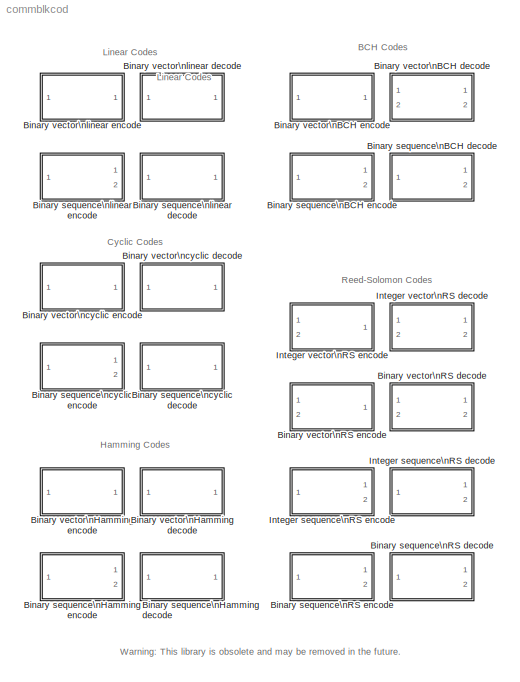
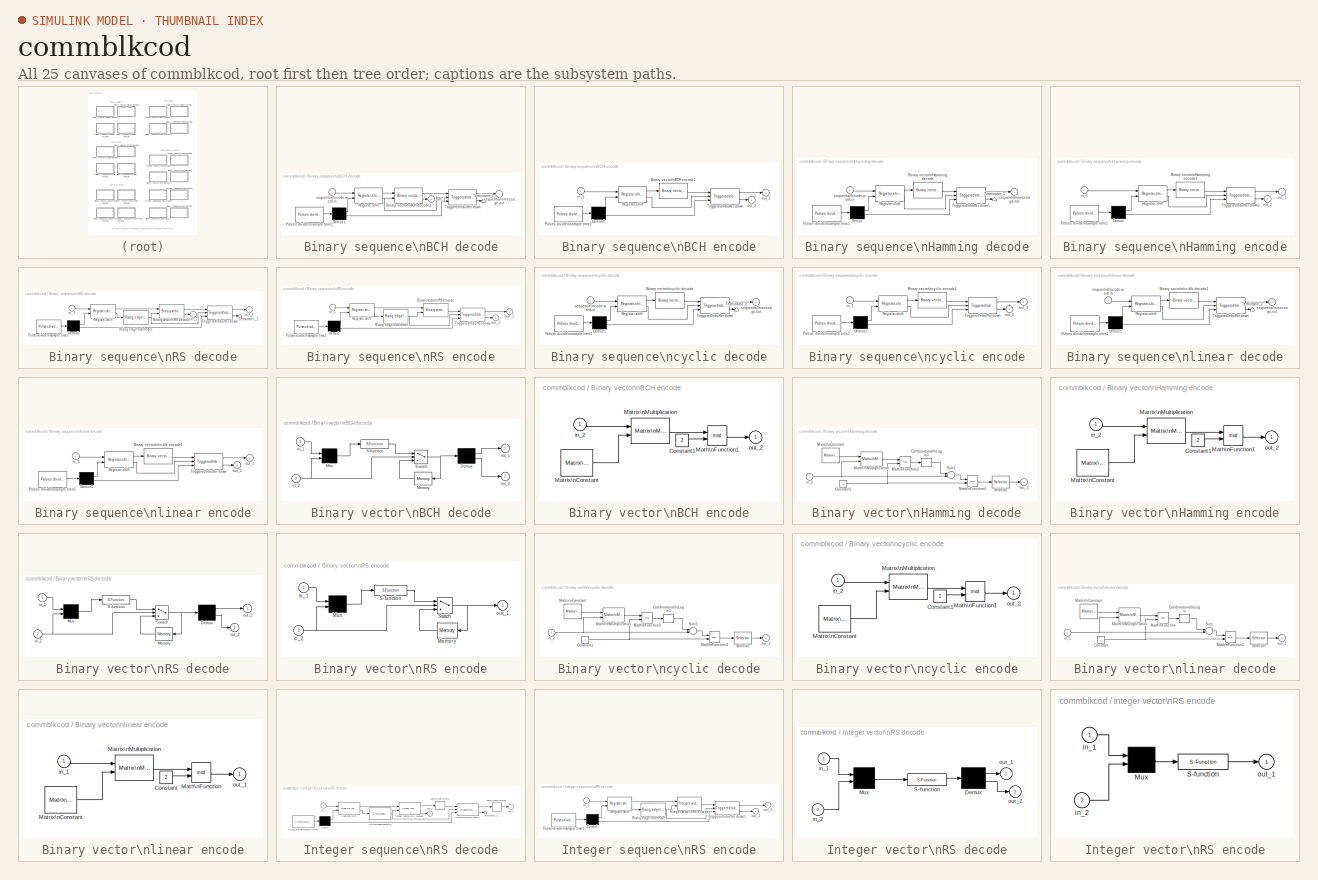
[diagram: thumbnail index - all 25 canvases of the model, root first then tree order]
MODEL commblkcod
KIND library
BLOCK [SubSystem] Binary sequence\nBCH decode
  MaskCallbackString = |||
  MaskDescription = BCH decode with codeword length N,  message length K, and error-correction capability T. (N,K,T) must be a valid BCH code combination.
  MaskDisplay = plot(0,0,100,100,[35 05 05 35 35 35 15 15 25 25 35 35 60 70 70 75 70 70 75 75 95 95 75 75 85 85],[95 95 85 85 95 85 85 95 95 85 85 90 90 90 93 90 87 93 90 95 95 85 85 95 95 85]-5);disp('BCH de')
  MaskEnableString = on,on,on,on
  MaskHelp = This block decodes length N binary codeword into length K message using BCH code. The block uses sequential input/output format. The input sequence sample time is K*T_out/N. The block causes a K*T_out delay. The second outport outputs the number of errors detected in the process. A negative value indicates the block found more error in the codeword than T.
  MaskIconFrame = on
  MaskIconOpaque = on
  MaskIconRotate = none
  MaskIconUnits = autoscale
  MaskPromptString = Codeword length N (N=2^M-1. M is a >2 integer):|Message length K (check BCHPOLY for valid K):|Error-correction capability T (0 for unknown):|Output sample time T_out (sec):
  MaskStyleString = edit,edit,edit,edit
  MaskToolTipString = on,on,on,on
  MaskTunableValueString = on,on,on,on
  MaskType = Sequence I/O BCH decode
  MaskValueString = 15|5|3|1/5
  MaskVarAliasString = ,,,
  MaskVariables = n=@1;k=@2;t=@3;samp=@4;
  MaskVisibilityString = on,on,on,on
  Ports = [1, 2]
  TreatAsAtomicUnit = off
BLOCK [Reference] Binary sequence\nBCH decode/Binary vector\nBCH decode1  REF=commblkcod/Binary vector\nBCH decode
  Ports = [2, 2]
  SourceBlock = commblkcod/Binary vector\nBCH decode
  SourceType = Vector I/O BCH decode
  k = k
  n = n
  t = t
BLOCK [Demux] Binary sequence\nBCH decode/Demux1
  Outputs = 2
  Ports = [1, 2]
BLOCK [Reference] Binary sequence\nBCH decode/Pulses divide\nsample time1  REF=commsource/Pulses divide\nsample time
  Ports = [0, 1]
  SourceBlock = commsource/Pulses divide\nsample time
  SourceType = Pulse generator
  offset = [0 0]
  out_divid = [n, k]
  samp_time = samp*k
BLOCK [Reference] Binary sequence\nBCH decode/Register-shift  REF=commutil/Register-shift
  Ports = [2, 2]
  SourceBlock = commutil/Register-shift
  SourceType = Register-shift
  shft_out = [n:-1:1]
  thrhld = .1
BLOCK [Terminator] Binary sequence\nBCH decode/Terminator_1
BLOCK [Reference] Binary sequence\nBCH decode/Triggered\nbuffer down  REF=commutil/Triggered\nbuffer down
  Ports = [3, 2]
  SourceBlock = commutil/Triggered\nbuffer down
  SourceType = Triggered buffer down
  cycl_flag = 0
  idx_inc = 1
  in_size = k
  ini_idx = 0
  thrshld = .1
BLOCK [Outport] Binary sequence\nBCH decode/out_2
  InitialOutput = 0
  Port = 2
BLOCK [Inport] Binary sequence\nBCH decode/sequential\ncode-word-in
BLOCK [Outport] Binary sequence\nBCH decode/sequential\nmessage-out
  InitialOutput = 0
BLOCK [SubSystem] Binary sequence\nBCH encode
  MaskCallbackString = ||
  MaskDescription = BCH encode with codeword length N, and message length K. (N, K) must be a valid BCH code pair.
  MaskDisplay = plot(0,0,100,100, [25 5 5 25 25 25 15 15 25 25 50 60 60 65 60 60 65 65 95 95 65 65 75 75 85 85],[90 90 80 80 90 80 80 90 90 85 85 85 88 85 82 88 85 90 90 80 80 90 90 80 80 90],x,y);disp('BCH en')
  MaskEnableString = on,on,on
  MaskHelp = This block encodes length K binary message into length N binary codeword using BCH code. The block uses sequence input/output format. The output sequential sample time is K*T_in/N. The block causes a K*T_in delay. The second outport outputs a pulse when Kth message signal is received. Use function BCHPOLY to view the valid N, K, and error-corr ection capability T combination.
  MaskIconFrame = on
  MaskIconOpaque = on
  MaskIconRotate = none
  MaskIconUnits = autoscale
  MaskInitialization = [x,y]=trigicon(1,75,get_param(gcb,'orientation'),1);\n
  MaskPromptString = Codeword length N (N=2^M-1. M is a >2 integer):|Message length K (check BCHPOLY for valid K):|Input sample time T_in (sec):
  MaskStyleString = edit,edit,edit
  MaskToolTipString = on,on,on
  MaskTunableValueString = on,on,on
  MaskType = Sequence I/O BCH encode
  MaskValueString = 15|5|1/5
  MaskVarAliasString = ,,
  MaskVariables = n=@1;k=@2;samp=@3;
  MaskVisibilityString = on,on,on
  Ports = [1, 2]
  TreatAsAtomicUnit = off
BLOCK [Reference] Binary sequence\nBCH encode/Binary vector\nBCH encode1  REF=commblkcod/Binary vector\nBCH encode
  Ports = [1, 1]
  SourceBlock = commblkcod/Binary vector\nBCH encode
  SourceType = Vector I/O BCH encode
  k = k
  n = n
BLOCK [Demux] Binary sequence\nBCH encode/Demux1
  Outputs = 2
  Ports = [1, 2]
BLOCK [Reference] Binary sequence\nBCH encode/Pulses divide\nsample time1  REF=commsource/Pulses divide\nsample time
  Ports = [0, 1]
  SourceBlock = commsource/Pulses divide\nsample time
  SourceType = Pulse generator
  offset = [0 0]
  out_divid = [k, n]
  samp_time = samp*k
BLOCK [Reference] Binary sequence\nBCH encode/Register-shift  REF=commutil/Register-shift
  Ports = [2, 2]
  SourceBlock = commutil/Register-shift
  SourceType = Register-shift
  shft_out = [k:-1:1]
  thrhld = .1
BLOCK [Reference] Binary sequence\nBCH encode/Triggered\nbuffer down  REF=commutil/Triggered\nbuffer down
  Ports = [3, 2]
  SourceBlock = commutil/Triggered\nbuffer down
  SourceType = Triggered buffer down
  cycl_flag = 0
  idx_inc = 1
  in_size = n
  ini_idx = 0
  thrshld = .1
BLOCK [Inport] Binary sequence\nBCH encode/in_1
BLOCK [Outport] Binary sequence\nBCH encode/out_1
  InitialOutput = 0
BLOCK [Outport] Binary sequence\nBCH encode/out_2
  InitialOutput = 0
  Port = 2
BLOCK [SubSystem] Binary sequence\nHamming decode
  MaskCallbackString = ||
  MaskDescription = Single error-correction Hamming decode with codeword length N=2^M-1, message length K=2^M-M-1, where M is a >=3 integer.
  MaskDisplay = plot(0,0,100,100,[35 05 05 35 35 35 15 15 25 25 35 35 60 70 70 75 70 70 75 75 95 95 75 75 85 85],[95 95 85 85 95 85 85 95 95 85 85 90 90 90 93 90 87 93 90 95 95 85 85 95 95 85]-5);\ndisp('Hamming de')
  MaskEnableString = on,on,on
  MaskHelp = This block decodes length N binary codeword into length K message using Hamming code. The block uses sequential input/output format. The input sequence sample time is K*T_out/N. The block causes a K*T_out delay. Use function GFPRIMDF or GFPRIMFD to find M-degree\\nprimitive polynomials.
  MaskIconFrame = on
  MaskIconOpaque = on
  MaskIconRotate = none
  MaskIconUnits = autoscale
  MaskInitialization = if length(k)>1,p=k;k=n-length(p)+1;else,p=gfprimdf(n-k);end;\n\n
  MaskPromptString = Codeword length N:|Message length K, or M-degree primitive polynomial:|Input sample time T_out (sec):
  MaskStyleString = edit,edit,edit
  MaskToolTipString = on,on,on
  MaskTunableValueString = on,on,on
  MaskType = Sequence I/O Hamming decode
  MaskValueString = 7|gfprimfd(3,'min')|1/4
  MaskVarAliasString = ,,
  MaskVariables = n=@1;k=@2;samp=@3;
  MaskVisibilityString = on,on,on
  Ports = [1, 1]
  TreatAsAtomicUnit = off
BLOCK [Reference] Binary sequence\nHamming decode/Binary vector\nHamming decode  REF=commblkcod/Binary vector\nHamming decode
  Ports = [1, 1]
  SourceBlock = commblkcod/Binary vector\nHamming decode
  SourceType = Vector I/O Hamming decode
  k = p
  n = n
BLOCK [Demux] Binary sequence\nHamming decode/Demux
  Outputs = 2
  Ports = [1, 2]
BLOCK [Reference] Binary sequence\nHamming decode/Pulses divide\nsample time1  REF=commsource/Pulses divide\nsample time
  Ports = [0, 1]
  SourceBlock = commsource/Pulses divide\nsample time
  SourceType = Pulse generator
  offset = [0 0]
  out_divid = [n, k]
  samp_time = samp*k
BLOCK [Reference] Binary sequence\nHamming decode/Register-shift  REF=commutil/Register-shift
  Ports = [2, 2]
  SourceBlock = commutil/Register-shift
  SourceType = Register-shift
  shft_out = [n:-1:1]
  thrhld = .1
BLOCK [Terminator] Binary sequence\nHamming decode/Terminator_1
BLOCK [Reference] Binary sequence\nHamming decode/Triggered\nbuffer down1  REF=commutil/Triggered\nbuffer down
  Ports = [3, 2]
  SourceBlock = commutil/Triggered\nbuffer down
  SourceType = Triggered buffer down
  cycl_flag = 0
  idx_inc = 1
  in_size = k
  ini_idx = 0
  thrshld = .1
BLOCK [Inport] Binary sequence\nHamming decode/sequential\ncode-word-in
BLOCK [Outport] Binary sequence\nHamming decode/sequential\nmessage-out
  InitialOutput = 0
BLOCK [SubSystem] Binary sequence\nHamming encode
  MaskCallbackString = ||
  MaskDescription = Single error-correction Hamming encode with codeword length N=2^M-1, message length K=2^M-M-1, where M is a >=3 integer.
  MaskDisplay = plot(0,0,100,100, [25 5 5 25 25 25 15 15 25 25 50 60 60 65 60 60 65 65 95 95 65 65 75 75 85 85],[90 90 80 80 90 80 80 90 90 85 85 85 88 85 82 88 85 90 90 80 80 90 90 80 80 90]);\ndisp('Hamming en')
  MaskEnableString = on,on,on
  MaskHelp = This block encodes length K binary message into length N binary codeword using Hamming code. The block uses sequential input/output format. The output sequence sample time is K*T_in/N. The block causes a K*T_in delay. The second outport outputs a pulse when Kth message signal is received. Use function GFPRIMDF or GFPRIMFD to find M-degree\\nprimitive polynomials.
  MaskIconFrame = on
  MaskIconOpaque = on
  MaskIconRotate = none
  MaskIconUnits = autoscale
  MaskInitialization = if length(k)>1,p=k;k=n-length(k)+1;else,p=gfprimdf(n-k);end;\n\n
  MaskPromptString = Codeword length N:|Message length K, or M-degree primitive polynomial:|Input sample time T_in (sec):
  MaskStyleString = edit,edit,edit
  MaskToolTipString = on,on,on
  MaskTunableValueString = on,on,on
  MaskType = Sequence I/O Hamming encode
  MaskValueString = 7|gfprimfd(3,'min')|1/4
  MaskVarAliasString = ,,
  MaskVariables = n=@1;k=@2;samp=@3;
  MaskVisibilityString = on,on,on
  Ports = [1, 2]
  TreatAsAtomicUnit = off
BLOCK [Reference] Binary sequence\nHamming encode/Binary vector\nHamming encode1  REF=commblkcod/Binary vector\nHamming encode
  Ports = [1, 1]
  SourceBlock = commblkcod/Binary vector\nHamming encode
  SourceType = Vector I/O Hamming encode
  k = p
  n = n
BLOCK [Demux] Binary sequence\nHamming encode/Demux
  Outputs = 2
  Ports = [1, 2]
BLOCK [Reference] Binary sequence\nHamming encode/Pulses divide\nsample time1  REF=commsource/Pulses divide\nsample time
  Ports = [0, 1]
  SourceBlock = commsource/Pulses divide\nsample time
  SourceType = Pulse generator
  offset = [0 0]
  out_divid = [k, n]
  samp_time = samp*k
BLOCK [Reference] Binary sequence\nHamming encode/Register-shift  REF=commutil/Register-shift
  Ports = [2, 2]
  SourceBlock = commutil/Register-shift
  SourceType = Register-shift
  shft_out = [k:-1:1]
  thrhld = .1
BLOCK [Reference] Binary sequence\nHamming encode/Triggered\nbuffer down1  REF=commutil/Triggered\nbuffer down
  Ports = [3, 2]
  SourceBlock = commutil/Triggered\nbuffer down
  SourceType = Triggered buffer down
  cycl_flag = 0
  idx_inc = 1
  in_size = n
  ini_idx = 0
  thrshld = .1
BLOCK [Inport] Binary sequence\nHamming encode/in_1
BLOCK [Outport] Binary sequence\nHamming encode/out_1
  InitialOutput = 0
BLOCK [Outport] Binary sequence\nHamming encode/out_2
  InitialOutput = 0
  Port = 2
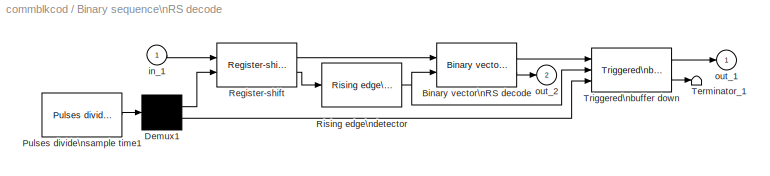
BLOCK [SubSystem] Binary sequence\nRS decode
  MaskCallbackString = ||
  MaskDescription = RS decode with codeword length N, message length K.
  MaskDisplay = plot(0,0,100,100,[35 05 05 35 35 35 15 15 25 25 35 35 60 70 70 75 70 70 75 75 95 95 75 75 85 85],[95 95 85 85 95 85 85 95 95 85 85 90 90 90 93 90 87 93 90 95 95 85 85 95 95 85]-5);\ndisp('B-RS de')
  MaskEnableString = on,on,on
  MaskHelp = This block decodes length N binary codeword into length K binary message. The block uses sequence input/output format. The input sequential sample time is K*T_out/N. The block causes a K*M*T_out delay. The second outport outputs the number of errors detected in the process. If the codeword contains more error than the correction capability, this output is nagative.
  MaskIconFrame = on
  MaskIconOpaque = on
  MaskIconRotate = none
  MaskIconUnits = autoscale
  MaskInitialization = m=3;p_d=7;while p_d<n,m=m+1;p_d=2^m-1;end;\n
  MaskPromptString = Code length N=2^M-1 (M is a >2 integer):|Message length K:|Output sample time T_out (sec):
  MaskStyleString = edit,edit,edit
  MaskToolTipString = on,on,on
  MaskTunableValueString = on,on,on
  MaskType = Binary sequence I/O RS decode
  MaskValueString = 7|5|1/5/3
  MaskVarAliasString = ,,
  MaskVariables = n=@1;k=@2;samp=@3;
  MaskVisibilityString = on,on,on
  Ports = [1, 2]
  TreatAsAtomicUnit = off
BLOCK [Reference] Binary sequence\nRS decode/Binary vector\nRS decode  REF=commblkcod/Binary vector\nRS decode
  Ports = [2, 2]
  SourceBlock = commblkcod/Binary vector\nRS decode
  SourceType = Binary vector I/O RS decode
  k = k
  n = n
BLOCK [Demux] Binary sequence\nRS decode/Demux1
  Outputs = 2
  Ports = [1, 2]
BLOCK [Reference] Binary sequence\nRS decode/Pulses divide\nsample time1  REF=commsource/Pulses divide\nsample time
  Ports = [0, 1]
  SourceBlock = commsource/Pulses divide\nsample time
  SourceType = Pulse generator
  offset = [0 0]
  out_divid = [n, k]
  samp_time = samp*k
BLOCK [Reference] Binary sequence\nRS decode/Register-shift  REF=commutil/Register-shift
  Ports = [2, 2]
  SourceBlock = commutil/Register-shift
  SourceType = Register-shift
  shft_out = [n*m:-1:1]
  thrhld = .1
BLOCK [Reference] Binary sequence\nRS decode/Rising edge\ndetector  REF=commutil/Rising edge\ndetector
  Ports = [1, 1]
  SourceBlock = commutil/Rising edge\ndetector
  SourceType = Edge detection
  thld = 0.1
BLOCK [Terminator] Binary sequence\nRS decode/Terminator_1
BLOCK [Reference] Binary sequence\nRS decode/Triggered\nbuffer down  REF=commutil/Triggered\nbuffer down
  Ports = [3, 2]
  SourceBlock = commutil/Triggered\nbuffer down
  SourceType = Triggered buffer down
  cycl_flag = 0
  idx_inc = 1
  in_size = k*m
  ini_idx = 0
  thrshld = .1
BLOCK [Inport] Binary sequence\nRS decode/in_1
BLOCK [Outport] Binary sequence\nRS decode/out_1
  InitialOutput = 0
BLOCK [Outport] Binary sequence\nRS decode/out_2
  InitialOutput = 0
  Port = 2
BLOCK [SubSystem] Binary sequence\nRS encode
  MaskCallbackString = ||
  MaskDescription = RS encode with codeword length N, message length K.
  MaskDisplay = plot(0,0,100,100, [25 5 5 25 25 25 15 15 25 25 50 60 60 65 60 60 65 65 95 95 65 65 75 75 85 85],[90 90 80 80 90 80 80 90 90 85 85 85 88 85 82 88 85 90 90 80 80 90 90 80 80 90]);\ndisp('B-RS en')
  MaskEnableString = on,on,on
  MaskHelp = This block encodes length K binary message into length N binary codeword. The block uses sequential input/output format. The output sequence sample time is K*T_in/N. The block causes a K*M*T_in delay. The second outport outputs a pulse when (K*M)-th message signal is received.
  MaskIconFrame = on
  MaskIconOpaque = on
  MaskIconRotate = none
  MaskIconUnits = autoscale
  MaskInitialization = m=3;p_m=7;while p_m<n,m=m+1;p_m=2^m-1;end;\n
  MaskPromptString = Code length N=2^M-1 (M is a >2 integer):|Message length K:|Input sample time T_in (sec):
  MaskStyleString = edit,edit,edit
  MaskToolTipString = on,on,on
  MaskTunableValueString = on,on,on
  MaskType = Binary sequence I/O RS encode
  MaskValueString = 7|5|1/5/3
  MaskVarAliasString = ,,
  MaskVariables = n=@1;k=@2;samp=@3;
  MaskVisibilityString = on,on,on
  Ports = [1, 2]
  TreatAsAtomicUnit = off
BLOCK [Reference] Binary sequence\nRS encode/Binary vector\nRS encode  REF=commblkcod/Binary vector\nRS encode
  Ports = [2, 1]
  SourceBlock = commblkcod/Binary vector\nRS encode
  SourceType = Binary vector I/O RS encode
  k = k
  n = n
BLOCK [Demux] Binary sequence\nRS encode/Demux1
  Outputs = 2
  Ports = [1, 2]
BLOCK [Reference] Binary sequence\nRS encode/Pulses divide\nsample time1  REF=commsource/Pulses divide\nsample time
  Ports = [0, 1]
  SourceBlock = commsource/Pulses divide\nsample time
  SourceType = Pulse generator
  offset = [0 0]
  out_divid = [k, n]
  samp_time = samp*k
BLOCK [Reference] Binary sequence\nRS encode/Register-shift  REF=commutil/Register-shift
  Ports = [2, 2]
  SourceBlock = commutil/Register-shift
  SourceType = Register-shift
  shft_out = [k*m:-1:1]
  thrhld = .1
BLOCK [Reference] Binary sequence\nRS encode/Rising edge\ndetector  REF=commutil/Rising edge\ndetector
  Ports = [1, 1]
  SourceBlock = commutil/Rising edge\ndetector
  SourceType = Edge detection
  thld = 0.1
BLOCK [Reference] Binary sequence\nRS encode/Triggered\nbuffer down  REF=commutil/Triggered\nbuffer down
  Ports = [3, 2]
  SourceBlock = commutil/Triggered\nbuffer down
  SourceType = Triggered buffer down
  cycl_flag = 0
  idx_inc = 1
  in_size = n*m
  ini_idx = 0
  thrshld = .1
BLOCK [Inport] Binary sequence\nRS encode/in_1
BLOCK [Outport] Binary sequence\nRS encode/out_1
  InitialOutput = 0
BLOCK [Outport] Binary sequence\nRS encode/out_2
  InitialOutput = 0
  Port = 2
BLOCK [SubSystem] Binary sequence\ncyclic decode
  MaskCallbackString = ||
  MaskDescription = Sequence decode with codeword length N and message length K.
  MaskDisplay = plot(0,0,100,100,[35 05 05 35 35 35 15 15 25 25 35 35 60 70 70 75 70 70 75 75 95 95 75 75 85 85],[95 95 85 85 95 85 85 95 95 85 85 90 90 90 93 90 87 93 90 95 95 85 85 95 95 85]-5);\ndisp('Cyclic de');
  MaskEnableString = on,on,on
  MaskHelp = This block decodes length N binary codeword into length K message using cyclic code. The block uses sequential input/output format. Use function CYCLPOLY for a list of cyclic generator polynomials. The input sequence sample time is K*T_out/N. The block causes a K*T_out delay.
  MaskIconFrame = on
  MaskIconOpaque = on
  MaskIconRotate = none
  MaskIconUnits = autoscale
  MaskInitialization = if length(p)==1, p=cyclpoly(n,p,'min');end;if isempty(p),error('No such cyclic code exist');end;k=n-length(p)+1;\n
  MaskPromptString = Codeword length N:|Message length K, or generator polynomial Pg:|Output sample time T_out (sec):
  MaskStyleString = edit,edit,edit
  MaskToolTipString = on,on,on
  MaskTunableValueString = on,on,on
  MaskType = Sequence I/O cyclic decode
  MaskValueString = 7|4|1/4
  MaskVarAliasString = ,,
  MaskVariables = n=@1;p=@2;samp=@3;
  MaskVisibilityString = on,on,on
  Ports = [1, 1]
  TreatAsAtomicUnit = off
BLOCK [Reference] Binary sequence\ncyclic decode/Binary vector\ncyclic decode  REF=commblkcod/Binary vector\ncyclic decode
  Ports = [1, 1]
  SourceBlock = commblkcod/Binary vector\ncyclic decode
  SourceType = Vector I/O cyclic decode
  n = n
  p = p
BLOCK [Demux] Binary sequence\ncyclic decode/Demux1
  Outputs = 2
  Ports = [1, 2]
BLOCK [Reference] Binary sequence\ncyclic decode/Pulses divide\nsample time1  REF=commsource/Pulses divide\nsample time
  Ports = [0, 1]
  SourceBlock = commsource/Pulses divide\nsample time
  SourceType = Pulse generator
  offset = [0 0]
  out_divid = [n, k]
  samp_time = samp*k
BLOCK [Reference] Binary sequence\ncyclic decode/Register-shift  REF=commutil/Register-shift
  Ports = [2, 2]
  SourceBlock = commutil/Register-shift
  SourceType = Register-shift
  shft_out = [n:-1:1]
  thrhld = .1
BLOCK [Terminator] Binary sequence\ncyclic decode/Terminator_1
BLOCK [Reference] Binary sequence\ncyclic decode/Triggered\nbuffer down  REF=commutil/Triggered\nbuffer down
  Ports = [3, 2]
  SourceBlock = commutil/Triggered\nbuffer down
  SourceType = Triggered buffer down
  cycl_flag = 0
  idx_inc = 1
  in_size = k
  ini_idx = 0
  thrshld = .1
BLOCK [Inport] Binary sequence\ncyclic decode/sequential\ncode-word-in
BLOCK [Outport] Binary sequence\ncyclic decode/sequential\nmessage-out
  InitialOutput = 0
BLOCK [SubSystem] Binary sequence\ncyclic encode
  MaskCallbackString = ||
  MaskDescription = Cyclic encode with codeword length N and message length K.
  MaskDisplay = plot(0,0,100,100, [25 5 5 25 25 25 15 15 25 25 50 60 60 65 60 60 65 65 95 95 65 65 75 75 85 85],[90 90 80 80 90 80 80 90 90 85 85 85 88 85 82 88 85 90 90 80 80 90 90 80 80 90]);\ndisp('Cyclic en')
  MaskEnableString = on,on,on
  MaskHelp = This block encodes length K binary message into length N binary codeword using cyclic code. The block uses sequential input/output format. The output sequence sample time is K*T_in/N. The block causes a K*T_in delay. The second outport outputs a pulse when Kth message signal is received. Use function CYCLPOLY for a list of cyclic generator polynomials.
  MaskIconFrame = on
  MaskIconOpaque = on
  MaskIconRotate = none
  MaskIconUnits = autoscale
  MaskInitialization = if length(p)==1,p=cyclpoly(n,p,'min');if isempty(p),error('No such cyclic code exist');end;end;k=n-length(p)+1;\n
  MaskPromptString = Codeword length N:|Message length K, or generator polynomial Pg:|Input sample time T_in (sec):
  MaskStyleString = edit,edit,edit
  MaskToolTipString = on,on,on
  MaskTunableValueString = on,on,on
  MaskType = Sequence I/O cyclic encode
  MaskValueString = 7|4|1/4
  MaskVarAliasString = ,,
  MaskVariables = n=@1;p=@2;samp=@3;
  MaskVisibilityString = on,on,on
  Ports = [1, 2]
  TreatAsAtomicUnit = off
BLOCK [Reference] Binary sequence\ncyclic encode/Binary vector\ncyclic encode1  REF=commblkcod/Binary vector\ncyclic encode
  Ports = [1, 1]
  SourceBlock = commblkcod/Binary vector\ncyclic encode
  SourceType = Vector I/O cyclic encode
  n = n
  p = p
BLOCK [Demux] Binary sequence\ncyclic encode/Demux1
  Outputs = 2
  Ports = [1, 2]
BLOCK [Reference] Binary sequence\ncyclic encode/Pulses divide\nsample time1  REF=commsource/Pulses divide\nsample time
  Ports = [0, 1]
  SourceBlock = commsource/Pulses divide\nsample time
  SourceType = Pulse generator
  offset = [0 0]
  out_divid = [k, n]
  samp_time = samp*k
BLOCK [Reference] Binary sequence\ncyclic encode/Register-shift  REF=commutil/Register-shift
  Ports = [2, 2]
  SourceBlock = commutil/Register-shift
  SourceType = Register-shift
  shft_out = [k:-1:1]
  thrhld = .1
BLOCK [Reference] Binary sequence\ncyclic encode/Triggered\nbuffer down  REF=commutil/Triggered\nbuffer down
  Ports = [3, 2]
  SourceBlock = commutil/Triggered\nbuffer down
  SourceType = Triggered buffer down
  cycl_flag = 0
  idx_inc = 1
  in_size = n
  ini_idx = 0
  thrshld = .1
BLOCK [Inport] Binary sequence\ncyclic encode/in_1
BLOCK [Outport] Binary sequence\ncyclic encode/out_1
  InitialOutput = 0
BLOCK [Outport] Binary sequence\ncyclic encode/out_2
  InitialOutput = 0
  Port = 2
BLOCK [SubSystem] Binary sequence\nlinear decode
  MaskCallbackString = ||
  MaskDescription = Linear block decode with message length K and codeword length N.
  MaskDisplay = plot(0,0,100,100,[35 05 05 35 35 35 15 15 25 25 35 35 60 70 70 75 70 70 75 75 95 95 75 75 85 85],[95 95 85 85 95 85 85 95 95 85 85 90 90 90 93 90 87 93 90 95 95 85 85 95 95 85]-5);\ndisp('Linear de')
  MaskEnableString = on,on,on
  MaskHelp = This block decodes length N binary codeword into length K message using linear block code. The block uses sequential input/output format. The input sequence sample time is K*T_out/N. The block causes a K*T_out delay. The generator matrix is a K-by-N matrix. Linear block code is a generic code.
  MaskIconFrame = on
  MaskIconOpaque = on
  MaskIconRotate = none
  MaskIconUnits = autoscale
  MaskInitialization = [k,n]=size(G);\n
  MaskPromptString = Generator matrix (binary K-by-N matrix):|Error-correction truth table (0 for single error-corr):|Output sample time T_out (sec):
  MaskStyleString = edit,edit,edit
  MaskToolTipString = on,on,on
  MaskTunableValueString = on,on,on
  MaskType = Sequence I/O linear block decode
  MaskValueString = [[1 1 0; 0 1 1; 1 1 1; 1 0 1] eye(4)]|0|1/4
  MaskVarAliasString = ,,
  MaskVariables = G=@1;trt=@2;samp=@3;
  MaskVisibilityString = on,on,on
  Ports = [1, 1]
  TreatAsAtomicUnit = off
BLOCK [Reference] Binary sequence\nlinear decode/Binary vector\nlin-blk decode1  REF=commblkcod/Binary vector\nlinear decode
  G = G
  Ports = [1, 1]
  SourceBlock = commblkcod/Binary vector\nlinear decode
  SourceType = Vector I/O linear block decode
  trt = trt
BLOCK [Demux] Binary sequence\nlinear decode/Demux1
  Outputs = 2
  Ports = [1, 2]
BLOCK [Reference] Binary sequence\nlinear decode/Pulses divide\nsample time1  REF=commsource/Pulses divide\nsample time
  Ports = [0, 1]
  SourceBlock = commsource/Pulses divide\nsample time
  SourceType = Pulse generator
  offset = [0 0]
  out_divid = [n, k]
  samp_time = samp*k
BLOCK [Reference] Binary sequence\nlinear decode/Register-shift  REF=commutil/Register-shift
  Ports = [2, 2]
  SourceBlock = commutil/Register-shift
  SourceType = Register-shift
  shft_out = [n:-1:1]
  thrhld = .1
BLOCK [Terminator] Binary sequence\nlinear decode/Terminator_2
BLOCK [Reference] Binary sequence\nlinear decode/Triggered\nbuffer down  REF=commutil/Triggered\nbuffer down
  Ports = [3, 2]
  SourceBlock = commutil/Triggered\nbuffer down
  SourceType = Triggered buffer down
  cycl_flag = 0
  idx_inc = 1
  in_size = k
  ini_idx = 0
  thrshld = .1
BLOCK [Inport] Binary sequence\nlinear decode/sequential\ncode-word-in
BLOCK [Outport] Binary sequence\nlinear decode/sequential\nmessage-out
  InitialOutput = 0
BLOCK [SubSystem] Binary sequence\nlinear encode
  MaskCallbackString = |
  MaskDescription = Linear block encode with message length K and codeword length N.
  MaskDisplay = plot(0,0,100,100, [25 5 5 25 25 25 15 15 25 25 50 60 60 65 60 60 65 65 95 95 65 65 75 75 85 85],[90 90 80 80 90 80 80 90 90 85 85 85 88 85 82 88 85 90 90 80 80 90 90 80 80 90]);\ndisp('Linear en')
  MaskEnableString = on,on
  MaskHelp = This block encodes length K binary message into length N binary codeword using linear block code. The block uses sequential input/output format. The output sequence sample time is K*T_in/N. The block causes a K*T_in delay. The second outport outputs a pulse when Kth message signal is received. The generator matrix is a K-by-N matrix. Linear block code is a generic code.
  MaskIconFrame = on
  MaskIconOpaque = on
  MaskIconRotate = none
  MaskIconUnits = autoscale
  MaskInitialization = [k, n]=size(G);\n
  MaskPromptString = Generator matrix (binary K-by-N matrix):|Input sample time T_in (sec):
  MaskStyleString = edit,edit
  MaskToolTipString = on,on
  MaskTunableValueString = on,on
  MaskType = Sequence I/O linear block encode
  MaskValueString = [[1 1 0; 0 1 1; 1 1 1; 1 0 1] eye(4)]|1/4
  MaskVarAliasString = ,
  MaskVariables = G=@1;samp=@2;
  MaskVisibilityString = on,on
  Ports = [1, 2]
  TreatAsAtomicUnit = off
BLOCK [Reference] Binary sequence\nlinear encode/Binary vector\nlin-blk encode1  REF=commblkcod/Binary vector\nlinear encode
  G = G
  Ports = [1, 1]
  SourceBlock = commblkcod/Binary vector\nlinear encode
  SourceType = Vector I/O linear block encode
BLOCK [Demux] Binary sequence\nlinear encode/Demux1
  Outputs = 2
  Ports = [1, 2]
BLOCK [Reference] Binary sequence\nlinear encode/Pulses divide\nsample time1  REF=commsource/Pulses divide\nsample time
  Ports = [0, 1]
  SourceBlock = commsource/Pulses divide\nsample time
  SourceType = Pulse generator
  offset = [0 0]
  out_divid = [k, n]
  samp_time = samp*k
BLOCK [Reference] Binary sequence\nlinear encode/Register-shift  REF=commutil/Register-shift
  Ports = [2, 2]
  SourceBlock = commutil/Register-shift
  SourceType = Register-shift
  shft_out = [k:-1:1]
  thrhld = .1
BLOCK [Reference] Binary sequence\nlinear encode/Triggered\nbuffer down  REF=commutil/Triggered\nbuffer down
  Ports = [3, 2]
  SourceBlock = commutil/Triggered\nbuffer down
  SourceType = Triggered buffer down
  cycl_flag = 0
  idx_inc = 1
  in_size = n
  ini_idx = 0
  thrshld = .1
BLOCK [Inport] Binary sequence\nlinear encode/in_1
BLOCK [Outport] Binary sequence\nlinear encode/out_1
  InitialOutput = 0
BLOCK [Outport] Binary sequence\nlinear encode/out_2
  InitialOutput = 0
  Port = 2
BLOCK [SubSystem] Binary vector\nBCH decode
  MaskCallbackString = ||
  MaskDescription = BCH decode with input codeword vector length N, output message vector length K, and error-correction capability T. (N,K,T) must be a valid BCH code combination.
  MaskDisplay = plot(0,0,100,100,[5 15 15 5 15 15 5 5 15 15 20 15 75 75 85 75 75 15 75 75 85 85 95 95 85 85 95],[75 75 85 85 85 65 65 95 95 83 80 77 77 73 80 87 83 83 83 87 80 90 90 70 70 80 80],x,y);disp('BCH de')
  MaskEnableString = on,on,on
  MaskHelp = This block decodes length N binary vector codeword input into length K binary vector message output using BCH code. The block refreshes its decoding output when the enable signal at the second inport has positive value. The second outport outputs the number of errors detected in the process. A negative value indicates the block found more error in the codeword than T.
  MaskIconFrame = on
  MaskIconOpaque = on
  MaskIconRotate = none
  MaskIconUnits = autoscale
  MaskInitialization = [x,y]=trigicon(0,25,get_param(gcb,'orientation'),1);if t<=0, [x1,x2,x3,x4,t]=bchpoly(n,k);end;dim=3;pow_dim=7;while pow_dim<n,dim=dim+1;pow_dim=2^dim-1;end;tp=gftuple([-1:n-1]',dim);\n\n
  MaskPromptString = Codeword length N (N=2^M-1. M is a >2 integer):|Message length K (check BCHPOLY for valid K):|Error-correction capability T (0 for unknown):
  MaskStyleString = edit,edit,edit
  MaskToolTipString = on,on,on
  MaskTunableValueString = on,on,on
  MaskType = Vector I/O BCH decode
  MaskValueString = 15|5|3
  MaskVarAliasString = ,,
  MaskVariables = n=@1;k=@2;t=@3;
  MaskVisibilityString = on,on,on
  Ports = [2, 2]
  TreatAsAtomicUnit = off
BLOCK [Demux] Binary vector\nBCH decode/Demux
  Outputs = [k, 1]
  Ports = [1, 2]
BLOCK [Memory] Binary vector\nBCH decode/Memory
  InheritSampleTime = on
  MaskIconFrame = on
  MaskIconOpaque = on
  MaskIconRotate = none
  MaskIconUnits = autoscale
  X0 = zeros(1,k+1)
BLOCK [Mux] Binary vector\nBCH decode/Mux
  Inputs = [n, 1]
  Ports = [2, 1]
BLOCK [S-Function] Binary vector\nBCH decode/S-function
  FunctionName = simbchdc
  Parameters = n, k, t,tp,dim
  Ports = [1, 1]
BLOCK [Switch] Binary vector\nBCH decode/Switch
  Threshold = 0.5
BLOCK [Inport] Binary vector\nBCH decode/in_1
BLOCK [Inport] Binary vector\nBCH decode/in_2
  Port = 2
BLOCK [Outport] Binary vector\nBCH decode/out_1
  InitialOutput = 0
BLOCK [Outport] Binary vector\nBCH decode/out_2
  InitialOutput = 0
  Port = 2
BLOCK [SubSystem] Binary vector\nBCH encode
  MaskCallbackString = |
  MaskDescription = BCH encode with input message vector length K and output codeword vector length N. (N, K) must be a valid BCH code pair.
  MaskDisplay = plot(0,0,100,100,[05 15 15 05 05 15 15 15  15 20 15 75 75 85 75 75 15 75 75  85 85 95 95 85 85 95 85 85 95],[80 80 90 90 70 70 90 80  83 80 77 77 73 80 87 83 83 83 87  80 95 95 65 65 85 85 85 75 75]);disp('BCH en')
  MaskEnableString = on,on
  MaskHelp = This block encodes length K binary vector message input into length N binary vector codeword output using BCH code. Use function BCHPOLY to view the valid N, K, and error-corr ection capability T combination.
  MaskIconFrame = on
  MaskIconOpaque = on
  MaskIconRotate = none
  MaskIconUnits = autoscale
  MaskInitialization = pg = bchpoly(n,k);[h,G]=cyclgen(n,pg);\n
  MaskPromptString = Codeword length N (N=2^M-1. M is a >2 integer):|Message length K (check BCHPOLY for valid K):
  MaskStyleString = edit,edit
  MaskToolTipString = on,on
  MaskTunableValueString = on,on
  MaskType = Vector I/O BCH encode
  MaskValueString = 15|5
  MaskVarAliasString = ,
  MaskVariables = n=@1;k=@2;
  MaskVisibilityString = on,on
  Ports = [1, 1]
  TreatAsAtomicUnit = off
BLOCK [Constant] Binary vector\nBCH encode/Constant1
  Value = 2
BLOCK [Math] Binary vector\nBCH encode/Math\nFunction1
  Operator = mod
  Ports = [2, 1]
BLOCK [Reference] Binary vector\nBCH encode/Matrix\nConstant  REF=dspmtrx2/Matrix\nConstant
  M = G
  Ports = [0, 1]
  SourceBlock = dspmtrx2/Matrix\nConstant
  SourceType = Matrix Constant
BLOCK [Reference] Binary vector\nBCH encode/Matrix\nMultiplication  REF=dspmtrx2/Matrix\nMultiplication
  Asize = [1 size(G,1)]
  Bcols = size(G,2)
  Ports = [2, 1]
  SourceBlock = dspmtrx2/Matrix\nMultiplication
  SourceType = Matrix Multiplication
BLOCK [Inport] Binary vector\nBCH encode/in_2
BLOCK [Outport] Binary vector\nBCH encode/out_2
  InitialOutput = 0
BLOCK [SubSystem] Binary vector\nHamming decode
  MaskCallbackString = |
  MaskDescription = Hamming decode with input codeword vector length N=2^M-1, output message vector length K=2^M-M-1, where M is a >=3 integer.
  MaskDisplay = plot(0,0,100,100,[1 3 3 1 3 3 1 1 3 3 4 3 15 15 17 15 15 3 15 15 17 17 19 19 17 17 19]*5,[-5 -5 5 5 5 -15 -15 15 15 3 0 -3 -3 -7 0 7 3 3 3 7 0 10 10 -10 -10 0 0]+80);disp('Hamming de')
  MaskEnableString = on,on
  MaskHelp = This block decodes length N binary vector codeword input into length K binary vector message output using Hamming code. Use\\nfunction GFPRIMDF or GFPRIMFD to find M-degree primitive polynomials.
  MaskIconFrame = on
  MaskIconOpaque = on
  MaskIconRotate = none
  MaskIconUnits = autoscale
  MaskInitialization = if length(k)>1,p=k;k=n-length(p)+1;else,p=gfprimdf(n-k);end;[H,G]=hammgen(n-k,p);trt=htruthtb(G);[n,m]=size(G);G=[zeros(n,m-n),eye(n)];\n
  MaskPromptString = Codeword length N:|Message length K, or M-degree primitive polynomial:
  MaskStyleString = edit,edit
  MaskToolTipString = on,on
  MaskTunableValueString = on,on
  MaskType = Vector I/O Hamming decode
  MaskValueString = 7|gfprimfd(3,'min')
  MaskVarAliasString = ,
  MaskVariables = n=@1;k=@2;
  MaskVisibilityString = on,on
  Ports = [1, 1]
  TreatAsAtomicUnit = off
BLOCK [CombinatorialLogic] Binary vector\nHamming decode/Combinatorial\nLogic1
  TruthTable = trt
BLOCK [Constant] Binary vector\nHamming decode/Constant1
  Value = 2
BLOCK [Math] Binary vector\nHamming decode/Math\nFunction3
  Operator = mod
  Ports = [2, 1]
BLOCK [Math] Binary vector\nHamming decode/Math\nFunction4
  Operator = mod
  Ports = [2, 1]
BLOCK [Reference] Binary vector\nHamming decode/Matrix\nConstant  REF=dspmtrx2/Matrix\nConstant
  M = H
  Ports = [0, 1]
  SourceBlock = dspmtrx2/Matrix\nConstant
  SourceType = Matrix Constant
BLOCK [Reference] Binary vector\nHamming decode/Matrix\nMultiplication  REF=dspmtrx2/Matrix\nMultiplication
  Asize = size(H)
  Bcols = 1
  Ports = [2, 1]
  SourceBlock = dspmtrx2/Matrix\nMultiplication
  SourceType = Matrix Multiplication
BLOCK [Selector] Binary vector\nHamming decode/Selector
  Elements = [m-n+1:m]
  InputPortWidth = m
  Ports = [1, 1]
BLOCK [Sum] Binary vector\nHamming decode/Sum1
  Ports = [2, 1]
BLOCK [Inport] Binary vector\nHamming decode/in_2
BLOCK [Outport] Binary vector\nHamming decode/out_2
  InitialOutput = 0
BLOCK [SubSystem] Binary vector\nHamming encode
  MaskCallbackString = |
  MaskDescription = Hamming encode with input message vector length K=2^M-M-1, output codeword vector length N=2^M-1, where M is a >=3 integer.
  MaskDisplay = plot(0,0,100,100,[1 3 3 1 1 3 3 3 3 4 3 15 15 17 15 15 3 15 15 17 17 19 19 17 17 19 17 17 19]*5,[0 0 10 10 -10 -10 10 0 3 0 -3 -3 -7 0 7 3 3 3 7 0 15 15 -15 -15 5 5 5 -5 -5]+80);disp('Hamming en')
  MaskEnableString = on,on
  MaskHelp = This block encodes length K binary vector message input into length N binary vector codeword output using Hamming code. Use function GFPRIMDF or GFPRIMFD to find M-degree primitive polynomials.
  MaskIconFrame = on
  MaskIconOpaque = on
  MaskIconRotate = none
  MaskIconUnits = autoscale
  MaskInitialization = if length(k)>1, p=k; k=n-length(k)+1;\nelse, p=gfprimdf(n-k); end;\n[h,G]=hammgen(n-k,p);\n
  MaskPromptString = Codeword length N:|Message length K, or M-degree primitive polynomial:
  MaskStyleString = edit,edit
  MaskToolTipString = on,on
  MaskTunableValueString = on,on
  MaskType = Vector I/O Hamming encode
  MaskValueString = 7|gfprimfd(3,'min')
  MaskVarAliasString = ,
  MaskVariables = n=@1;k=@2;
  MaskVisibilityString = on,on
  Ports = [1, 1]
  TreatAsAtomicUnit = off
BLOCK [Constant] Binary vector\nHamming encode/Constant1
  Value = 2
BLOCK [Math] Binary vector\nHamming encode/Math\nFunction1
  Operator = mod
  Ports = [2, 1]
BLOCK [Reference] Binary vector\nHamming encode/Matrix\nConstant  REF=dspmtrx2/Matrix\nConstant
  M = G
  Ports = [0, 1]
  SourceBlock = dspmtrx2/Matrix\nConstant
  SourceType = Matrix Constant
BLOCK [Reference] Binary vector\nHamming encode/Matrix\nMultiplication  REF=dspmtrx2/Matrix\nMultiplication
  Asize = [1 size(G,1)]
  Bcols = size(G,2)
  Ports = [2, 1]
  SourceBlock = dspmtrx2/Matrix\nMultiplication
  SourceType = Matrix Multiplication
BLOCK [Inport] Binary vector\nHamming encode/in_2
BLOCK [Outport] Binary vector\nHamming encode/out_2
  InitialOutput = 0
BLOCK [SubSystem] Binary vector\nRS decode
  MaskCallbackString = |
  MaskDescription = Reed-Solomon decode with binary input vector length N*M and binary output vector length K*M.
  MaskDisplay = plot(0,0,100,100,[5 15 15 5 15 15 5 5 15 15 20 15 75 75 85 75 75 15 75 75 85 85 95 95 85 85 95],[75 75 85 85 85 65 65 95 95 83 80 77 77 73 80 87 83 83 83 87 80 90 90 70 70 80 80],[5 10 10 15 15 20],5*[1 1 2 2 1 1]+10);\ndisp('B-RS de')
  MaskEnableString = on,on
  MaskHelp = This block decodes length N*M binary vector input into length K*M binary vector output. The codeword length is N=2^M-1. M>2. The message length is K<N. The block refreshes its decoding output when the enable signal at the second inport has positive value. The second outport outputs the number of errors detected in the process. If the codeword contains more errors than the correction capability, th...<+22ch>
  MaskIconFrame = on
  MaskIconOpaque = on
  MaskIconRotate = none
  MaskIconUnits = autoscale
  MaskInitialization = dim=3;p_d=7;while p_d<n,dim=dim+1;p_d=2^dim-1;end;tp=gftuple([-1:n-1]',dim);\n
  MaskPromptString = Code length N=2^M-1 (M is a >2 integer):|Message length K (< N):
  MaskStyleString = edit,edit
  MaskToolTipString = on,on
  MaskTunableValueString = on,on
  MaskType = Binary vector I/O RS decode
  MaskValueString = 7|5
  MaskVarAliasString = ,
  MaskVariables = n=@1;k=@2;
  MaskVisibilityString = on,on
  Ports = [2, 2]
  TreatAsAtomicUnit = off
BLOCK [Demux] Binary vector\nRS decode/Demux
  Outputs = [k*dim,1]
  Ports = [1, 2]
BLOCK [Memory] Binary vector\nRS decode/Memory
  MaskIconFrame = on
  MaskIconOpaque = on
  MaskIconRotate = none
  MaskIconUnits = autoscale
  X0 = zeros(1,k*dim+1)
BLOCK [Mux] Binary vector\nRS decode/Mux
  Inputs = 2
  Ports = [2, 1]
BLOCK [S-Function] Binary vector\nRS decode/S-function
  FunctionName = simrsdbv
  Parameters = n, k, tp, dim
  Ports = [1, 1]
BLOCK [Switch] Binary vector\nRS decode/Switch
  Threshold = 0.5
BLOCK [Inport] Binary vector\nRS decode/in_1
BLOCK [Inport] Binary vector\nRS decode/in_2
  Port = 2
BLOCK [Outport] Binary vector\nRS decode/out_1
  InitialOutput = 0
BLOCK [Outport] Binary vector\nRS decode/out_2
  InitialOutput = 0
  Port = 2
BLOCK [SubSystem] Binary vector\nRS encode
  MaskCallbackString = |
  MaskDescription = Reed-Solomon encode with binary input vector length K*M and binary output vector length N*M.
  MaskDisplay = plot(0,0,100,100,[05 15 15 05 05 15 15 15  15 20 15 75 75 85 75 75 15 75 75  85 85 95 95 85 85 95 85 85 95],[80 80 90 90 70 70 90 80  83 80 77 77 73 80 87 83 83 83 87  80 95 95 65 65 85 85 85 75 75],[5 10 10 15 15 20],5*[1 1 2 2 1 1]+10);\ndisp('B-RS en')
  MaskEnableString = on,on
  MaskHelp = This block encodes length K*M binary vector input into length N*M binary vector output. The codeword length is N=2^M-1. M is a integer larger than 2. The message length is K<N. The block refreshes its encoding output when the enable signal at the second inport has positive value.
  MaskIconFrame = on
  MaskIconOpaque = on
  MaskIconRotate = none
  MaskIconUnits = autoscale
  MaskInitialization = if length(k)>1,pg=k;k=n-length(pg)-1;else,pg=rspoly(n,k);end;dim=3;p_dim=7;while p_dim<n,dim=dim+1;p_dim=2^dim-1;end;tp=gftuple([-1:n-1]',dim);\n
  MaskPromptString = Code length N=2^M-1 (M is a >2 integer):|Message length K (< N):
  MaskStyleString = edit,edit
  MaskToolTipString = on,on
  MaskTunableValueString = on,on
  MaskType = Binary vector I/O RS encode
  MaskValueString = 7|5
  MaskVarAliasString = ,
  MaskVariables = n=@1;k=@2;
  MaskVisibilityString = on,on
  Ports = [2, 1]
  TreatAsAtomicUnit = off
BLOCK [Memory] Binary vector\nRS encode/Memory
  MaskIconFrame = on
  MaskIconOpaque = on
  MaskIconRotate = none
  MaskIconUnits = autoscale
  X0 = zeros(1,n*dim)
BLOCK [Mux] Binary vector\nRS encode/Mux
  Inputs = 2
  Ports = [2, 1]
BLOCK [S-Function] Binary vector\nRS encode/S-function
  FunctionName = simrscbv
  Parameters = n, k, pg,tp,dim
  Ports = [1, 1]
BLOCK [Switch] Binary vector\nRS encode/Switch
  Threshold = 0.5
BLOCK [Inport] Binary vector\nRS encode/in_1
BLOCK [Inport] Binary vector\nRS encode/in_2
  Port = 2
BLOCK [Outport] Binary vector\nRS encode/out_1
  InitialOutput = 0
BLOCK [SubSystem] Binary vector\ncyclic decode
  MaskCallbackString = |
  MaskDescription = Cyclic decode with codeword length N and message length K.
  MaskDisplay = plot(0,0,100,100,[5 15 15 5 15 15 5 5 15 15 20 15 75 75 85 75 75 15 75 75 85 85 95 95 85 85 95],[75 75 85 85 85 65 65 95 95 83 80 77 77 73 80 87 83 83 83 87 80 90 90 70 70 80 80]);\ndisp('Cyclic de')
  MaskEnableString = on,on
  MaskHelp = This block decodes length N binary vector codeword input into length K binary vector message output using cyclic code. When Pg is specified instead of K, the block uses the user-defined cyclic polynomial Pg. Use function CYCLPOLY for a list of cyclic generator polynomials.
  MaskIconFrame = on
  MaskIconOpaque = on
  MaskIconRotate = none
  MaskIconUnits = autoscale
  MaskInitialization = if length(p)==1, p=cyclpoly(n,p,'min');\n   if isempty(p), error('No cyclic code exists for specified values of Nand K'); end; end;\n[H,G]=cyclgen(n,p);trt=htruthtb(G);[n,m]=size(G);
  MaskPromptString = Codeword length N:|Message length K, or generator polynomial Pg:
  MaskStyleString = edit,edit
  MaskToolTipString = on,on
  MaskTunableValueString = on,on
  MaskType = Vector I/O cyclic decode
  MaskValueString = 7|4
  MaskVarAliasString = ,
  MaskVariables = n=@1;p=@2;
  MaskVisibilityString = on,on
  Ports = [1, 1]
  TreatAsAtomicUnit = off
BLOCK [CombinatorialLogic] Binary vector\ncyclic decode/Combinatorial\nLogic1
  TruthTable = trt
BLOCK [Constant] Binary vector\ncyclic decode/Constant1
  Value = 2
BLOCK [Math] Binary vector\ncyclic decode/Math\nFunction3
  Operator = mod
  Ports = [2, 1]
BLOCK [Math] Binary vector\ncyclic decode/Math\nFunction4
  Operator = mod
  Ports = [2, 1]
BLOCK [Reference] Binary vector\ncyclic decode/Matrix\nConstant  REF=dspmtrx2/Matrix\nConstant
  M = H
  Ports = [0, 1]
  SourceBlock = dspmtrx2/Matrix\nConstant
  SourceType = Matrix Constant
BLOCK [Reference] Binary vector\ncyclic decode/Matrix\nMultiplication  REF=dspmtrx2/Matrix\nMultiplication
  Asize = size(H)
  Bcols = 1
  Ports = [2, 1]
  SourceBlock = dspmtrx2/Matrix\nMultiplication
  SourceType = Matrix Multiplication
BLOCK [Selector] Binary vector\ncyclic decode/Selector
  Elements = [m-n+1:m]
  InputPortWidth = m
  Ports = [1, 1]
BLOCK [Sum] Binary vector\ncyclic decode/Sum1
  Ports = [2, 1]
BLOCK [Inport] Binary vector\ncyclic decode/in_2
BLOCK [Outport] Binary vector\ncyclic decode/out_2
  InitialOutput = 0
BLOCK [SubSystem] Binary vector\ncyclic encode
  MaskCallbackString = |
  MaskDescription = Cyclic encode with codeword length N and message length K.
  MaskDisplay = plot(0,0,100,100,[05 15 15 05 05 15 15 15  15 20 15 75 75 85 75 75 15 75 75  85 85 95 95 85 85 95 85 85 95],[80 80 90 90 70 70 90 80  83 80 77 77 73 80 87 83 83 83 87  80 95 95 65 65 85 85 85 75 75]);\ndisp('Cyclic en')
  MaskEnableString = on,on
  MaskHelp = This block encodes length K binary vector message input into length N binary vector codeword output using cyclic code. When Pg is specified instead of K, the block uses the user-defined cyclic polynomial Pg. Use function CYCLPOLY for a list of cyclic generator polynomials.
  MaskIconFrame = on
  MaskIconOpaque = on
  MaskIconRotate = none
  MaskIconUnits = autoscale
  MaskInitialization = if length(p)==1,p=cyclpoly(n,p,'min');\n   if isempty(p),error('No cyclic code exists for specified values of N and K');end;end;\n[h,G]=cyclgen(n, p);
  MaskPromptString = Codeword length N:|Message length K, or generator polynomial Pg:
  MaskStyleString = edit,edit
  MaskToolTipString = on,on
  MaskTunableValueString = on,on
  MaskType = Vector I/O cyclic encode
  MaskValueString = 7|4
  MaskVarAliasString = ,
  MaskVariables = n=@1;p=@2;
  MaskVisibilityString = on,on
  Ports = [1, 1]
  TreatAsAtomicUnit = off
BLOCK [Constant] Binary vector\ncyclic encode/Constant1
  Value = 2
BLOCK [Math] Binary vector\ncyclic encode/Math\nFunction1
  Operator = mod
  Ports = [2, 1]
BLOCK [Reference] Binary vector\ncyclic encode/Matrix\nConstant  REF=dspmtrx2/Matrix\nConstant
  M = G
  Ports = [0, 1]
  SourceBlock = dspmtrx2/Matrix\nConstant
  SourceType = Matrix Constant
BLOCK [Reference] Binary vector\ncyclic encode/Matrix\nMultiplication  REF=dspmtrx2/Matrix\nMultiplication
  Asize = [1 size(G,1)]
  Bcols = size(G,2)
  Ports = [2, 1]
  SourceBlock = dspmtrx2/Matrix\nMultiplication
  SourceType = Matrix Multiplication
BLOCK [Inport] Binary vector\ncyclic encode/in_2
BLOCK [Outport] Binary vector\ncyclic encode/out_2
  InitialOutput = 0
BLOCK [SubSystem] Binary vector\nlinear decode
  MaskCallbackString = |
  MaskDescription = Linear block decode with input codeword vector length N and output message vector length K.
  MaskDisplay = plot(0,0,100,100,[5 15 15 5 15 15 5 5 15 15 20 15 75 75 85 75 75 15 75 75 85 85 95 95 85 85 95],[75 75 85 85 85 65 65 95 95 83 80 77 77 73 80 87 83 83 83 87 80 90 90 70 70 80 80]);\ndisp('Linear de')
  MaskEnableString = on,on
  MaskHelp = This block decodes length N binary vector codeword input into length K binary vector message output using linear block code. The generator matrix is a K-by-N matrix. Linear block code is a generic code. Use the HTRUTHTB function to generate a single error-correction truth table.
  MaskIconFrame = on
  MaskIconOpaque = on
  MaskIconRotate = none
  MaskIconUnits = autoscale
  MaskInitialization = H=gen2par(G);if trt==0,trt=htruthtb(G);end;[n,m]=size(G);\n
  MaskPromptString = Generator matrix (binary K-by-N matrix):|Error-correction truth table (0 for single error-corr):
  MaskStyleString = edit,edit
  MaskToolTipString = on,on
  MaskTunableValueString = on,on
  MaskType = Vector I/O linear block decode
  MaskValueString = [[1 1 0; 0 1 1; 1 1 1;1 0 1] eye(4)]|0
  MaskVarAliasString = ,
  MaskVariables = G=@1;trt=@2;
  MaskVisibilityString = on,on
  Ports = [1, 1]
  TreatAsAtomicUnit = off
BLOCK [CombinatorialLogic] Binary vector\nlinear decode/Combinatorial\nLogic
  TruthTable = trt
BLOCK [Constant] Binary vector\nlinear decode/Constant
  Value = 2
BLOCK [Math] Binary vector\nlinear decode/Math\nFunction
  Operator = mod
  Ports = [2, 1]
BLOCK [Math] Binary vector\nlinear decode/Math\nFunction1
  Operator = mod
  Ports = [2, 1]
BLOCK [Reference] Binary vector\nlinear decode/Matrix\nConstant  REF=dspmtrx2/Matrix\nConstant
  M = H
  Ports = [0, 1]
  SourceBlock = dspmtrx2/Matrix\nConstant
  SourceType = Matrix Constant
BLOCK [Reference] Binary vector\nlinear decode/Matrix\nMultiplication  REF=dspmtrx2/Matrix\nMultiplication
  Asize = size(H)
  Bcols = 1
  Ports = [2, 1]
  SourceBlock = dspmtrx2/Matrix\nMultiplication
  SourceType = Matrix Multiplication
BLOCK [Selector] Binary vector\nlinear decode/Selector
  Elements = [m-n+1:m]
  InputPortWidth = m
  Ports = [1, 1]
BLOCK [Sum] Binary vector\nlinear decode/Sum
  Ports = [2, 1]
BLOCK [Inport] Binary vector\nlinear decode/in_1
BLOCK [Outport] Binary vector\nlinear decode/out_1
  InitialOutput = 0
BLOCK [SubSystem] Binary vector\nlinear encode
  MaskDescription = Linear block encode with input message vector length K and output codeword vector length N.
  MaskDisplay = plot(0,0,100,100,[05 15 15 05 05 15 15 15  15 20 15 75 75 85 75 75 15 75 75  85 85 95 95 85 85 95 85 85 95],[80 80 90 90 70 70 90 80  83 80 77 77 73 80 87 83 83 83 87  80 95 95 65 65 85 85 85 75 75]);\ndisp('Linear en')
  MaskEnableString = on
  MaskHelp = Linear block encode with input message vector length K and output codeword vector length N. The generator matrix is a K-by-N matrix. Linear block code is a generic code.
  MaskIconFrame = on
  MaskIconOpaque = on
  MaskIconRotate = none
  MaskIconUnits = autoscale
  MaskInitialization = \n
  MaskPromptString = Generator matrix (binary K-by-N matrix):
  MaskStyleString = edit
  MaskToolTipString = on
  MaskTunableValueString = on
  MaskType = Vector I/O linear block encode
  MaskValueString = [[1 1 0; 0 1 1; 1 1 1; 1 0 1] eye(4)]
  MaskVariables = G=@1;
  MaskVisibilityString = on
  Ports = [1, 1]
  TreatAsAtomicUnit = off
BLOCK [Constant] Binary vector\nlinear encode/Constant
  Value = 2
BLOCK [Math] Binary vector\nlinear encode/Math\nFunction
  Operator = mod
  Ports = [2, 1]
BLOCK [Reference] Binary vector\nlinear encode/Matrix\nConstant  REF=dspmtrx2/Matrix\nConstant
  M = G
  Ports = [0, 1]
  SourceBlock = dspmtrx2/Matrix\nConstant
  SourceType = Matrix Constant
BLOCK [Reference] Binary vector\nlinear encode/Matrix\nMultiplication  REF=dspmtrx2/Matrix\nMultiplication
  Asize = [1 size(G,1)]
  Bcols = size(G,2)
  Ports = [2, 1]
  SourceBlock = dspmtrx2/Matrix\nMultiplication
  SourceType = Matrix Multiplication
BLOCK [Inport] Binary vector\nlinear encode/in_1
BLOCK [Outport] Binary vector\nlinear encode/out_1
  InitialOutput = 0
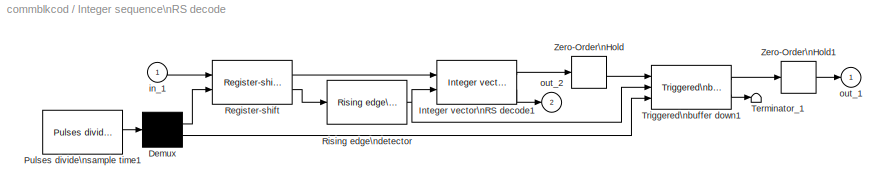
BLOCK [SubSystem] Integer sequence\nRS decode
  MaskCallbackString = ||
  MaskDescription = RS decode with codeword length N, message length K. Input integers are in range [0, N-1].
  MaskDisplay = plot(0,0,100,100,[35 05 05 35 35 35 15 15 25 25 35 35 60 70 70 75 70 70 75 75 95 95 75 75 85 85],[95 95 85 85 95 85 85 95 95 85 85 90 90 90 93 90 87 93 90 95 95 85 85 95 95 85]-5);\ndisp('Int RS de')
  MaskEnableString = on,on,on
  MaskHelp = This block decodes length N integer codeword into length K integer message. The block uses sequential input/output format. The input integers are in range [0, N-1]. The input sequence sample time is K*T_out/N. The block causes a K*T_out delay. The second outport outputs the number of errors detected in the process. If the codeword contains more errors than the correction capability, this output is...<+10ch>
  MaskIconFrame = on
  MaskIconOpaque = on
  MaskIconRotate = none
  MaskIconUnits = autoscale
  MaskInitialization = m=3;p_d=7;while p_d<n,m=m+1;p_d=2^m-1;end;\n
  MaskPromptString = Code length N=2^M-1 (M is a >2 integer):|Message length K:|Output sample time T_out (sec):
  MaskStyleString = edit,edit,edit
  MaskToolTipString = on,on,on
  MaskTunableValueString = on,on,on
  MaskType = Integer sequence I/O RS decode
  MaskValueString = 7|5|1/5
  MaskVarAliasString = ,,
  MaskVariables = n=@1;k=@2;samp=@3;
  MaskVisibilityString = on,on,on
  Ports = [1, 2]
  TreatAsAtomicUnit = off
BLOCK [Demux] Integer sequence\nRS decode/Demux
  Outputs = 2
  Ports = [1, 2]
BLOCK [Reference] Integer sequence\nRS decode/Integer vector\nRS decode1  REF=commblkcod/Integer vector\nRS decode
  Ports = [2, 2]
  SourceBlock = commblkcod/Integer vector\nRS decode
  SourceType = Integer vector I/O RS decode
  k = k
  n = n
BLOCK [Reference] Integer sequence\nRS decode/Pulses divide\nsample time1  REF=commsource/Pulses divide\nsample time
  Ports = [0, 1]
  SourceBlock = commsource/Pulses divide\nsample time
  SourceType = Pulse generator
  offset = [0 0]
  out_divid = [n, k]
  samp_time = samp*k
BLOCK [Reference] Integer sequence\nRS decode/Register-shift  REF=commutil/Register-shift
  Ports = [2, 2]
  SourceBlock = commutil/Register-shift
  SourceType = Register-shift
  shft_out = [n:-1:1]
  thrhld = .1
BLOCK [Reference] Integer sequence\nRS decode/Rising edge\ndetector  REF=commutil/Rising edge\ndetector
  Ports = [1, 1]
  SourceBlock = commutil/Rising edge\ndetector
  SourceType = Edge detection
  thld = 0.1
BLOCK [Terminator] Integer sequence\nRS decode/Terminator_1
BLOCK [Reference] Integer sequence\nRS decode/Triggered\nbuffer down1  REF=commutil/Triggered\nbuffer down
  Ports = [3, 2]
  SourceBlock = commutil/Triggered\nbuffer down
  SourceType = Triggered buffer down
  cycl_flag = 0
  idx_inc = 1
  in_size = k
  ini_idx = 0
  thrshld = .1
BLOCK [ZeroOrderHold] Integer sequence\nRS decode/Zero-Order\nHold
  SampleTime = samp*k
BLOCK [ZeroOrderHold] Integer sequence\nRS decode/Zero-Order\nHold1
  SampleTime = samp
BLOCK [Inport] Integer sequence\nRS decode/in_1
BLOCK [Outport] Integer sequence\nRS decode/out_1
  InitialOutput = 0
BLOCK [Outport] Integer sequence\nRS decode/out_2
  InitialOutput = 0
  Port = 2
BLOCK [SubSystem] Integer sequence\nRS encode
  MaskCallbackString = ||
  MaskDescription = RS encode with codeword length N, message length K. Input integers are in range [0, N-1].
  MaskDisplay = plot(0,0,100,100, [25 5 5 25 25 25 15 15 25 25 50 60 60 65 60 60 65 65 95 95 65 65 75 75 85 85],[90 90 80 80 90 80 80 90 90 85 85 85 88 85 82 88 85 90 90 80 80 90 90 80 80 90]);\ndisp('Int RS en')
  MaskEnableString = on,on,on
  MaskHelp = This block encodes length K integer message into length N integer codeword. The block uses sequential input/output format. The input integers are in range [0, N-1]. The output sequence sample time is K*T_in/N. The block causes a K*T_in delay. The second outport outputs a pulse when Kth message signal is received.
  MaskIconFrame = on
  MaskIconOpaque = on
  MaskIconRotate = none
  MaskIconUnits = autoscale
  MaskInitialization = m=3;p_m=7;while p_m<n,m=m+1;p_m=2^m-1;end;\n
  MaskPromptString = Code length N=2^M-1 (M is a >2 integer):|Message length K:|Input sample time T_in (sec):
  MaskStyleString = edit,edit,edit
  MaskToolTipString = on,on,on
  MaskTunableValueString = on,on,on
  MaskType = Integer sequence I/O RS encode
  MaskValueString = 7|5|1/5
  MaskVarAliasString = ,,
  MaskVariables = n=@1;k=@2;samp=@3;
  MaskVisibilityString = on,on,on
  Ports = [1, 2]
  TreatAsAtomicUnit = off
BLOCK [Demux] Integer sequence\nRS encode/Demux1
  Outputs = 2
  Ports = [1, 2]
BLOCK [Reference] Integer sequence\nRS encode/Integer vector\nRS encode  REF=commblkcod/Integer vector\nRS encode
  Ports = [2, 1]
  SourceBlock = commblkcod/Integer vector\nRS encode
  SourceType = Integer vector I/O RS encode
  k = k
  n = n
BLOCK [Reference] Integer sequence\nRS encode/Pulses divide\nsample time1  REF=commsource/Pulses divide\nsample time
  Ports = [0, 1]
  SourceBlock = commsource/Pulses divide\nsample time
  SourceType = Pulse generator
  offset = [0 0]
  out_divid = [k, n]
  samp_time = samp*k
BLOCK [Reference] Integer sequence\nRS encode/Register-shift  REF=commutil/Register-shift
  Ports = [2, 2]
  SourceBlock = commutil/Register-shift
  SourceType = Register-shift
  shft_out = [k:-1:1]
  thrhld = .1
BLOCK [Reference] Integer sequence\nRS encode/Rising edge\ndetector  REF=commutil/Rising edge\ndetector
  Ports = [1, 1]
  SourceBlock = commutil/Rising edge\ndetector
  SourceType = Edge detection
  thld = 0.1
BLOCK [Reference] Integer sequence\nRS encode/Triggered\nbuffer down1  REF=commutil/Triggered\nbuffer down
  Ports = [3, 2]
  SourceBlock = commutil/Triggered\nbuffer down
  SourceType = Triggered buffer down
  cycl_flag = 0
  idx_inc = 1
  in_size = n
  ini_idx = 0
  thrshld = .1
BLOCK [Inport] Integer sequence\nRS encode/in_1
BLOCK [Outport] Integer sequence\nRS encode/out_1
  InitialOutput = 0
BLOCK [Outport] Integer sequence\nRS encode/out_2
  InitialOutput = 0
  Port = 2
BLOCK [SubSystem] Integer vector\nRS decode
  MaskCallbackString = |
  MaskDescription = Reed-Solomon decode with integer output codeword vector length N and integer input message vector length K.
  MaskDisplay = plot(0,0,100,100,[5 15 15 5 15 15 5 5 15 15 20 15 75 75 85 75 75 15 75 75 85 85 95 95 85 85 95],[75 75 85 85 85 65 65 95 95 83 80 77 77 73 80 87 83 83 83 87 80 90 90 70 70 80 80],[5 10 10 15 15 20],5*[1 1 2 2 1 1]+10);\ndisp('Int RS de')
  MaskEnableString = on,on
  MaskHelp = This block decodes length N integer vector codeword input into length K integer vector message output. The input/output integers are in the range [0, N-1]. The block refreshes its decoding output when the enable signal at the second inport has positive value. The second outport outputs the number of errors detected in the process. If the codeword contains more errors than the correction capability...<+26ch>
  MaskIconFrame = on
  MaskIconOpaque = on
  MaskIconRotate = none
  MaskIconUnits = autoscale
  MaskInitialization = dim=3;p_d=7;while p_d<n,dim=dim+1;p_d=2^dim-1;end;tp=gftuple([-1:n-1]',dim);\n
  MaskPromptString = Code word length N=2^M-1 (M is a >=3 integer):|Message length K (< N):
  MaskStyleString = edit,edit
  MaskToolTipString = on,on
  MaskTunableValueString = on,on
  MaskType = Integer vector I/O RS decode
  MaskValueString = 7|5
  MaskVarAliasString = ,
  MaskVariables = n=@1;k=@2;
  MaskVisibilityString = on,on
  Ports = [2, 2]
  TreatAsAtomicUnit = off
BLOCK [Demux] Integer vector\nRS decode/Demux
  Outputs = [k, 1]
  Ports = [1, 2]
BLOCK [Mux] Integer vector\nRS decode/Mux
  Inputs = 2
  Ports = [2, 1]
BLOCK [S-Function] Integer vector\nRS decode/S-function
  FunctionName = simrsdec
  Parameters = n, k, tp, dim
  Ports = [1, 1]
BLOCK [Inport] Integer vector\nRS decode/in_1
BLOCK [Inport] Integer vector\nRS decode/in_2
  Port = 2
BLOCK [Outport] Integer vector\nRS decode/out_1
  InitialOutput = 0
BLOCK [Outport] Integer vector\nRS decode/out_2
  InitialOutput = 0
  Port = 2
BLOCK [SubSystem] Integer vector\nRS encode
  MaskCallbackString = |
  MaskDescription = Reed-Solomon encode with integer input message vector length K and integer output codeword vector length N.
  MaskDisplay = plot(0,0,100,100,[05 15 15 05 05 15 15 15  15 20 15 75 75 85 75 75 15 75 75  85 85 95 95 85 85 95 85 85 95],[80 80 90 90 70 70 90 80  83 80 77 77 73 80 87 83 83 83 87  80 95 95 65 65 85 85 85 75 75],[5 10 10 15 15 20],5*[1 1 2 2 1 1]+10);\ndisp('Int RS en')
  MaskEnableString = on,on
  MaskHelp = This block encodes length K integer vector message input into length N integer vector codeword output. The input/output integers are in range [0, N-1]. Code word length N=2^M-1, where M is a integer no less than 3. The message length is K<N. The error-correction capability is T=floor((N-K)/2). The block refreshes its decoding output when the enable signal at the second inport has positive value.
  MaskIconFrame = on
  MaskIconOpaque = on
  MaskIconRotate = none
  MaskIconUnits = autoscale
  MaskInitialization = if length(k)>1,pg=k;k=n-length(pg)-1;else,pg=rspoly(n,k);end;dim=3;p_dim=7;while p_dim<n,dim=dim+1;p_dim=2^dim-1;end;tp=gftuple([-1:n-1]',dim);\n
  MaskPromptString = Code length N=2^M-1 (M is a >=3 integer):|Message length K (< N):
  MaskStyleString = edit,edit
  MaskToolTipString = on,on
  MaskTunableValueString = on,on
  MaskType = Integer vector I/O RS encode
  MaskValueString = 7|5
  MaskVarAliasString = ,
  MaskVariables = n=@1;k=@2;
  MaskVisibilityString = on,on
  Ports = [2, 1]
  TreatAsAtomicUnit = off
BLOCK [Mux] Integer vector\nRS encode/Mux
  Inputs = 2
  Ports = [2, 1]
BLOCK [S-Function] Integer vector\nRS encode/S-function
  FunctionName = simrscod
  Parameters = n, k, pg,tp,dim
  Ports = [1, 1]
BLOCK [Inport] Integer vector\nRS encode/in_1
BLOCK [Inport] Integer vector\nRS encode/in_2
  Port = 2
BLOCK [Outport] Integer vector\nRS encode/out_1
  InitialOutput = 0
ANNOTATION (root): BCH Codes
ANNOTATION (root): Cyclic Codes
ANNOTATION (root): Hamming Codes
ANNOTATION (root): Linear Codes
ANNOTATION (root): Reed-Solomon Codes
ANNOTATION (root): Warning: This library is obsolete and may be removed in the future.
LINE Binary sequence\nBCH decode/Binary vector\nBCH decode1:1 -> Binary sequence\nBCH decode/Triggered\nbuffer down:1
LINE Binary sequence\nBCH decode/Binary vector\nBCH decode1:2 -> Binary sequence\nBCH decode/out_2:1
LINE Binary sequence\nBCH decode/Demux1:1 -> Binary sequence\nBCH decode/Register-shift:2
LINE Binary sequence\nBCH decode/Demux1:2 -> Binary sequence\nBCH decode/Triggered\nbuffer down:3
LINE Binary sequence\nBCH decode/Pulses divide\nsample time1:1 -> Binary sequence\nBCH decode/Demux1:1
LINE Binary sequence\nBCH decode/Register-shift:1 -> Binary sequence\nBCH decode/Binary vector\nBCH decode1:1
NET Binary sequence\nBCH decode/Register-shift:2 -> Binary sequence\nBCH decode/Binary vector\nBCH decode1:2, Binary sequence\nBCH decode/Triggered\nbuffer down:2
LINE Binary sequence\nBCH decode/Triggered\nbuffer down:1 -> Binary sequence\nBCH decode/sequential\nmessage-out:1
LINE Binary sequence\nBCH decode/Triggered\nbuffer down:2 -> Binary sequence\nBCH decode/Terminator_1:1
LINE Binary sequence\nBCH decode/sequential\ncode-word-in:1 -> Binary sequence\nBCH decode/Register-shift:1
LINE Binary sequence\nBCH encode/Binary vector\nBCH encode1:1 -> Binary sequence\nBCH encode/Triggered\nbuffer down:1
LINE Binary sequence\nBCH encode/Demux1:1 -> Binary sequence\nBCH encode/Register-shift:2
LINE Binary sequence\nBCH encode/Demux1:2 -> Binary sequence\nBCH encode/Triggered\nbuffer down:3
LINE Binary sequence\nBCH encode/Pulses divide\nsample time1:1 -> Binary sequence\nBCH encode/Demux1:1
LINE Binary sequence\nBCH encode/Register-shift:1 -> Binary sequence\nBCH encode/Binary vector\nBCH encode1:1
LINE Binary sequence\nBCH encode/Register-shift:2 -> Binary sequence\nBCH encode/Triggered\nbuffer down:2
LINE Binary sequence\nBCH encode/Triggered\nbuffer down:1 -> Binary sequence\nBCH encode/out_1:1
LINE Binary sequence\nBCH encode/Triggered\nbuffer down:2 -> Binary sequence\nBCH encode/out_2:1
LINE Binary sequence\nBCH encode/in_1:1 -> Binary sequence\nBCH encode/Register-shift:1
LINE Binary sequence\nHamming decode/Binary vector\nHamming decode:1 -> Binary sequence\nHamming decode/Triggered\nbuffer down1:1
LINE Binary sequence\nHamming decode/Demux:1 -> Binary sequence\nHamming decode/Register-shift:2
LINE Binary sequence\nHamming decode/Demux:2 -> Binary sequence\nHamming decode/Triggered\nbuffer down1:3
LINE Binary sequence\nHamming decode/Pulses divide\nsample time1:1 -> Binary sequence\nHamming decode/Demux:1
LINE Binary sequence\nHamming decode/Register-shift:1 -> Binary sequence\nHamming decode/Binary vector\nHamming decode:1
LINE Binary sequence\nHamming decode/Register-shift:2 -> Binary sequence\nHamming decode/Triggered\nbuffer down1:2
LINE Binary sequence\nHamming decode/Triggered\nbuffer down1:1 -> Binary sequence\nHamming decode/sequential\nmessage-out:1
LINE Binary sequence\nHamming decode/Triggered\nbuffer down1:2 -> Binary sequence\nHamming decode/Terminator_1:1
LINE Binary sequence\nHamming decode/sequential\ncode-word-in:1 -> Binary sequence\nHamming decode/Register-shift:1
LINE Binary sequence\nHamming encode/Binary vector\nHamming encode1:1 -> Binary sequence\nHamming encode/Triggered\nbuffer down1:1
LINE Binary sequence\nHamming encode/Demux:1 -> Binary sequence\nHamming encode/Register-shift:2
LINE Binary sequence\nHamming encode/Demux:2 -> Binary sequence\nHamming encode/Triggered\nbuffer down1:3
LINE Binary sequence\nHamming encode/Pulses divide\nsample time1:1 -> Binary sequence\nHamming encode/Demux:1
LINE Binary sequence\nHamming encode/Register-shift:1 -> Binary sequence\nHamming encode/Binary vector\nHamming encode1:1
LINE Binary sequence\nHamming encode/Register-shift:2 -> Binary sequence\nHamming encode/Triggered\nbuffer down1:2
LINE Binary sequence\nHamming encode/Triggered\nbuffer down1:1 -> Binary sequence\nHamming encode/out_1:1
LINE Binary sequence\nHamming encode/Triggered\nbuffer down1:2 -> Binary sequence\nHamming encode/out_2:1
LINE Binary sequence\nHamming encode/in_1:1 -> Binary sequence\nHamming encode/Register-shift:1
LINE Binary sequence\nRS decode/Binary vector\nRS decode:1 -> Binary sequence\nRS decode/Triggered\nbuffer down:1
LINE Binary sequence\nRS decode/Binary vector\nRS decode:2 -> Binary sequence\nRS decode/out_2:1
LINE Binary sequence\nRS decode/Demux1:1 -> Binary sequence\nRS decode/Register-shift:2
LINE Binary sequence\nRS decode/Demux1:2 -> Binary sequence\nRS decode/Triggered\nbuffer down:3
LINE Binary sequence\nRS decode/Pulses divide\nsample time1:1 -> Binary sequence\nRS decode/Demux1:1
LINE Binary sequence\nRS decode/Register-shift:1 -> Binary sequence\nRS decode/Binary vector\nRS decode:1
LINE Binary sequence\nRS decode/Register-shift:2 -> Binary sequence\nRS decode/Rising edge\ndetector:1
NET Binary sequence\nRS decode/Rising edge\ndetector:1 -> Binary sequence\nRS decode/Binary vector\nRS decode:2, Binary sequence\nRS decode/Triggered\nbuffer down:2
LINE Binary sequence\nRS decode/Triggered\nbuffer down:1 -> Binary sequence\nRS decode/out_1:1
LINE Binary sequence\nRS decode/Triggered\nbuffer down:2 -> Binary sequence\nRS decode/Terminator_1:1
LINE Binary sequence\nRS decode/in_1:1 -> Binary sequence\nRS decode/Register-shift:1
LINE Binary sequence\nRS encode/Binary vector\nRS encode:1 -> Binary sequence\nRS encode/Triggered\nbuffer down:1
LINE Binary sequence\nRS encode/Demux1:1 -> Binary sequence\nRS encode/Register-shift:2
LINE Binary sequence\nRS encode/Demux1:2 -> Binary sequence\nRS encode/Triggered\nbuffer down:3
LINE Binary sequence\nRS encode/Pulses divide\nsample time1:1 -> Binary sequence\nRS encode/Demux1:1
LINE Binary sequence\nRS encode/Register-shift:1 -> Binary sequence\nRS encode/Binary vector\nRS encode:1
LINE Binary sequence\nRS encode/Register-shift:2 -> Binary sequence\nRS encode/Rising edge\ndetector:1
NET Binary sequence\nRS encode/Rising edge\ndetector:1 -> Binary sequence\nRS encode/Binary vector\nRS encode:2, Binary sequence\nRS encode/Triggered\nbuffer down:2
LINE Binary sequence\nRS encode/Triggered\nbuffer down:1 -> Binary sequence\nRS encode/out_1:1
LINE Binary sequence\nRS encode/Triggered\nbuffer down:2 -> Binary sequence\nRS encode/out_2:1
LINE Binary sequence\nRS encode/in_1:1 -> Binary sequence\nRS encode/Register-shift:1
LINE Binary sequence\ncyclic decode/Binary vector\ncyclic decode:1 -> Binary sequence\ncyclic decode/Triggered\nbuffer down:1
LINE Binary sequence\ncyclic decode/Demux1:1 -> Binary sequence\ncyclic decode/Register-shift:2
LINE Binary sequence\ncyclic decode/Demux1:2 -> Binary sequence\ncyclic decode/Triggered\nbuffer down:3
LINE Binary sequence\ncyclic decode/Pulses divide\nsample time1:1 -> Binary sequence\ncyclic decode/Demux1:1
LINE Binary sequence\ncyclic decode/Register-shift:1 -> Binary sequence\ncyclic decode/Binary vector\ncyclic decode:1
LINE Binary sequence\ncyclic decode/Register-shift:2 -> Binary sequence\ncyclic decode/Triggered\nbuffer down:2
LINE Binary sequence\ncyclic decode/Triggered\nbuffer down:1 -> Binary sequence\ncyclic decode/sequential\nmessage-out:1
LINE Binary sequence\ncyclic decode/Triggered\nbuffer down:2 -> Binary sequence\ncyclic decode/Terminator_1:1
LINE Binary sequence\ncyclic decode/sequential\ncode-word-in:1 -> Binary sequence\ncyclic decode/Register-shift:1
LINE Binary sequence\ncyclic encode/Binary vector\ncyclic encode1:1 -> Binary sequence\ncyclic encode/Triggered\nbuffer down:1
LINE Binary sequence\ncyclic encode/Demux1:1 -> Binary sequence\ncyclic encode/Register-shift:2
LINE Binary sequence\ncyclic encode/Demux1:2 -> Binary sequence\ncyclic encode/Triggered\nbuffer down:3
LINE Binary sequence\ncyclic encode/Pulses divide\nsample time1:1 -> Binary sequence\ncyclic encode/Demux1:1
LINE Binary sequence\ncyclic encode/Register-shift:1 -> Binary sequence\ncyclic encode/Binary vector\ncyclic encode1:1
LINE Binary sequence\ncyclic encode/Register-shift:2 -> Binary sequence\ncyclic encode/Triggered\nbuffer down:2
LINE Binary sequence\ncyclic encode/Triggered\nbuffer down:1 -> Binary sequence\ncyclic encode/out_1:1
LINE Binary sequence\ncyclic encode/Triggered\nbuffer down:2 -> Binary sequence\ncyclic encode/out_2:1
LINE Binary sequence\ncyclic encode/in_1:1 -> Binary sequence\ncyclic encode/Register-shift:1
LINE Binary sequence\nlinear decode/Binary vector\nlin-blk decode1:1 -> Binary sequence\nlinear decode/Triggered\nbuffer down:1
LINE Binary sequence\nlinear decode/Demux1:1 -> Binary sequence\nlinear decode/Register-shift:2
LINE Binary sequence\nlinear decode/Demux1:2 -> Binary sequence\nlinear decode/Triggered\nbuffer down:3
LINE Binary sequence\nlinear decode/Pulses divide\nsample time1:1 -> Binary sequence\nlinear decode/Demux1:1
LINE Binary sequence\nlinear decode/Register-shift:1 -> Binary sequence\nlinear decode/Binary vector\nlin-blk decode1:1
LINE Binary sequence\nlinear decode/Register-shift:2 -> Binary sequence\nlinear decode/Triggered\nbuffer down:2
LINE Binary sequence\nlinear decode/Triggered\nbuffer down:1 -> Binary sequence\nlinear decode/sequential\nmessage-out:1
LINE Binary sequence\nlinear decode/Triggered\nbuffer down:2 -> Binary sequence\nlinear decode/Terminator_2:1
LINE Binary sequence\nlinear decode/sequential\ncode-word-in:1 -> Binary sequence\nlinear decode/Register-shift:1
LINE Binary sequence\nlinear encode/Binary vector\nlin-blk encode1:1 -> Binary sequence\nlinear encode/Triggered\nbuffer down:1
LINE Binary sequence\nlinear encode/Demux1:1 -> Binary sequence\nlinear encode/Register-shift:2
LINE Binary sequence\nlinear encode/Demux1:2 -> Binary sequence\nlinear encode/Triggered\nbuffer down:3
LINE Binary sequence\nlinear encode/Pulses divide\nsample time1:1 -> Binary sequence\nlinear encode/Demux1:1
LINE Binary sequence\nlinear encode/Register-shift:1 -> Binary sequence\nlinear encode/Binary vector\nlin-blk encode1:1
LINE Binary sequence\nlinear encode/Register-shift:2 -> Binary sequence\nlinear encode/Triggered\nbuffer down:2
LINE Binary sequence\nlinear encode/Triggered\nbuffer down:1 -> Binary sequence\nlinear encode/out_1:1
LINE Binary sequence\nlinear encode/Triggered\nbuffer down:2 -> Binary sequence\nlinear encode/out_2:1
LINE Binary sequence\nlinear encode/in_1:1 -> Binary sequence\nlinear encode/Register-shift:1
LINE Binary vector\nBCH decode/Demux:1 -> Binary vector\nBCH decode/out_1:1
LINE Binary vector\nBCH decode/Demux:2 -> Binary vector\nBCH decode/out_2:1
LINE Binary vector\nBCH decode/Memory:1 -> Binary vector\nBCH decode/Switch:3
LINE Binary vector\nBCH decode/Mux:1 -> Binary vector\nBCH decode/S-function:1
LINE Binary vector\nBCH decode/S-function:1 -> Binary vector\nBCH decode/Switch:1
NET Binary vector\nBCH decode/Switch:1 -> Binary vector\nBCH decode/Demux:1, Binary vector\nBCH decode/Memory:1
LINE Binary vector\nBCH decode/in_1:1 -> Binary vector\nBCH decode/Mux:1
NET Binary vector\nBCH decode/in_2:1 -> Binary vector\nBCH decode/Mux:2, Binary vector\nBCH decode/Switch:2
LINE Binary vector\nBCH encode/Constant1:1 -> Binary vector\nBCH encode/Math\nFunction1:2
LINE Binary vector\nBCH encode/Math\nFunction1:1 -> Binary vector\nBCH encode/out_2:1
LINE Binary vector\nBCH encode/Matrix\nConstant:1 -> Binary vector\nBCH encode/Matrix\nMultiplication:2
LINE Binary vector\nBCH encode/Matrix\nMultiplication:1 -> Binary vector\nBCH encode/Math\nFunction1:1
LINE Binary vector\nBCH encode/in_2:1 -> Binary vector\nBCH encode/Matrix\nMultiplication:1
LINE Binary vector\nHamming decode/Combinatorial\nLogic1:1 -> Binary vector\nHamming decode/Sum1:1
NET Binary vector\nHamming decode/Constant1:1 -> Binary vector\nHamming decode/Math\nFunction3:2, Binary vector\nHamming decode/Math\nFunction4:2
LINE Binary vector\nHamming decode/Math\nFunction3:1 -> Binary vector\nHamming decode/Combinatorial\nLogic1:1
LINE Binary vector\nHamming decode/Math\nFunction4:1 -> Binary vector\nHamming decode/Selector:1
LINE Binary vector\nHamming decode/Matrix\nConstant:1 -> Binary vector\nHamming decode/Matrix\nMultiplication:1
LINE Binary vector\nHamming decode/Matrix\nMultiplication:1 -> Binary vector\nHamming decode/Math\nFunction3:1
LINE Binary vector\nHamming decode/Selector:1 -> Binary vector\nHamming decode/out_2:1
LINE Binary vector\nHamming decode/Sum1:1 -> Binary vector\nHamming decode/Math\nFunction4:1
NET Binary vector\nHamming decode/in_2:1 -> Binary vector\nHamming decode/Matrix\nMultiplication:2, Binary vector\nHamming decode/Sum1:2
LINE Binary vector\nHamming encode/Constant1:1 -> Binary vector\nHamming encode/Math\nFunction1:2
LINE Binary vector\nHamming encode/Math\nFunction1:1 -> Binary vector\nHamming encode/out_2:1
LINE Binary vector\nHamming encode/Matrix\nConstant:1 -> Binary vector\nHamming encode/Matrix\nMultiplication:2
LINE Binary vector\nHamming encode/Matrix\nMultiplication:1 -> Binary vector\nHamming encode/Math\nFunction1:1
LINE Binary vector\nHamming encode/in_2:1 -> Binary vector\nHamming encode/Matrix\nMultiplication:1
LINE Binary vector\nRS decode/Demux:1 -> Binary vector\nRS decode/out_1:1
LINE Binary vector\nRS decode/Demux:2 -> Binary vector\nRS decode/out_2:1
LINE Binary vector\nRS decode/Memory:1 -> Binary vector\nRS decode/Switch:3
LINE Binary vector\nRS decode/Mux:1 -> Binary vector\nRS decode/S-function:1
LINE Binary vector\nRS decode/S-function:1 -> Binary vector\nRS decode/Switch:1
NET Binary vector\nRS decode/Switch:1 -> Binary vector\nRS decode/Demux:1, Binary vector\nRS decode/Memory:1
LINE Binary vector\nRS decode/in_1:1 -> Binary vector\nRS decode/Mux:1
NET Binary vector\nRS decode/in_2:1 -> Binary vector\nRS decode/Mux:2, Binary vector\nRS decode/Switch:2
LINE Binary vector\nRS encode/Memory:1 -> Binary vector\nRS encode/Switch:3
LINE Binary vector\nRS encode/Mux:1 -> Binary vector\nRS encode/S-function:1
LINE Binary vector\nRS encode/S-function:1 -> Binary vector\nRS encode/Switch:1
NET Binary vector\nRS encode/Switch:1 -> Binary vector\nRS encode/Memory:1, Binary vector\nRS encode/out_1:1
LINE Binary vector\nRS encode/in_1:1 -> Binary vector\nRS encode/Mux:1
NET Binary vector\nRS encode/in_2:1 -> Binary vector\nRS encode/Mux:2, Binary vector\nRS encode/Switch:2
LINE Binary vector\ncyclic decode/Combinatorial\nLogic1:1 -> Binary vector\ncyclic decode/Sum1:1
NET Binary vector\ncyclic decode/Constant1:1 -> Binary vector\ncyclic decode/Math\nFunction3:2, Binary vector\ncyclic decode/Math\nFunction4:2
LINE Binary vector\ncyclic decode/Math\nFunction3:1 -> Binary vector\ncyclic decode/Combinatorial\nLogic1:1
LINE Binary vector\ncyclic decode/Math\nFunction4:1 -> Binary vector\ncyclic decode/Selector:1
LINE Binary vector\ncyclic decode/Matrix\nConstant:1 -> Binary vector\ncyclic decode/Matrix\nMultiplication:1
LINE Binary vector\ncyclic decode/Matrix\nMultiplication:1 -> Binary vector\ncyclic decode/Math\nFunction3:1
LINE Binary vector\ncyclic decode/Selector:1 -> Binary vector\ncyclic decode/out_2:1
LINE Binary vector\ncyclic decode/Sum1:1 -> Binary vector\ncyclic decode/Math\nFunction4:1
NET Binary vector\ncyclic decode/in_2:1 -> Binary vector\ncyclic decode/Matrix\nMultiplication:2, Binary vector\ncyclic decode/Sum1:2
LINE Binary vector\ncyclic encode/Constant1:1 -> Binary vector\ncyclic encode/Math\nFunction1:2
LINE Binary vector\ncyclic encode/Math\nFunction1:1 -> Binary vector\ncyclic encode/out_2:1
LINE Binary vector\ncyclic encode/Matrix\nConstant:1 -> Binary vector\ncyclic encode/Matrix\nMultiplication:2
LINE Binary vector\ncyclic encode/Matrix\nMultiplication:1 -> Binary vector\ncyclic encode/Math\nFunction1:1
LINE Binary vector\ncyclic encode/in_2:1 -> Binary vector\ncyclic encode/Matrix\nMultiplication:1
LINE Binary vector\nlinear decode/Combinatorial\nLogic:1 -> Binary vector\nlinear decode/Sum:1
NET Binary vector\nlinear decode/Constant:1 -> Binary vector\nlinear decode/Math\nFunction1:2, Binary vector\nlinear decode/Math\nFunction:2
LINE Binary vector\nlinear decode/Math\nFunction1:1 -> Binary vector\nlinear decode/Selector:1
LINE Binary vector\nlinear decode/Math\nFunction:1 -> Binary vector\nlinear decode/Combinatorial\nLogic:1
LINE Binary vector\nlinear decode/Matrix\nConstant:1 -> Binary vector\nlinear decode/Matrix\nMultiplication:1
LINE Binary vector\nlinear decode/Matrix\nMultiplication:1 -> Binary vector\nlinear decode/Math\nFunction:1
LINE Binary vector\nlinear decode/Selector:1 -> Binary vector\nlinear decode/out_1:1
LINE Binary vector\nlinear decode/Sum:1 -> Binary vector\nlinear decode/Math\nFunction1:1
NET Binary vector\nlinear decode/in_1:1 -> Binary vector\nlinear decode/Matrix\nMultiplication:2, Binary vector\nlinear decode/Sum:2
LINE Binary vector\nlinear encode/Constant:1 -> Binary vector\nlinear encode/Math\nFunction:2
LINE Binary vector\nlinear encode/Math\nFunction:1 -> Binary vector\nlinear encode/out_1:1
LINE Binary vector\nlinear encode/Matrix\nConstant:1 -> Binary vector\nlinear encode/Matrix\nMultiplication:2
LINE Binary vector\nlinear encode/Matrix\nMultiplication:1 -> Binary vector\nlinear encode/Math\nFunction:1
LINE Binary vector\nlinear encode/in_1:1 -> Binary vector\nlinear encode/Matrix\nMultiplication:1
LINE Integer sequence\nRS decode/Demux:1 -> Integer sequence\nRS decode/Register-shift:2
LINE Integer sequence\nRS decode/Demux:2 -> Integer sequence\nRS decode/Triggered\nbuffer down1:3
LINE Integer sequence\nRS decode/Integer vector\nRS decode1:1 -> Integer sequence\nRS decode/Zero-Order\nHold:1
LINE Integer sequence\nRS decode/Integer vector\nRS decode1:2 -> Integer sequence\nRS decode/out_2:1
LINE Integer sequence\nRS decode/Pulses divide\nsample time1:1 -> Integer sequence\nRS decode/Demux:1
LINE Integer sequence\nRS decode/Register-shift:1 -> Integer sequence\nRS decode/Integer vector\nRS decode1:1
LINE Integer sequence\nRS decode/Register-shift:2 -> Integer sequence\nRS decode/Rising edge\ndetector:1
NET Integer sequence\nRS decode/Rising edge\ndetector:1 -> Integer sequence\nRS decode/Integer vector\nRS decode1:2, Integer sequence\nRS decode/Triggered\nbuffer down1:2
LINE Integer sequence\nRS decode/Triggered\nbuffer down1:1 -> Integer sequence\nRS decode/Zero-Order\nHold1:1
LINE Integer sequence\nRS decode/Triggered\nbuffer down1:2 -> Integer sequence\nRS decode/Terminator_1:1
LINE Integer sequence\nRS decode/Zero-Order\nHold1:1 -> Integer sequence\nRS decode/out_1:1
LINE Integer sequence\nRS decode/Zero-Order\nHold:1 -> Integer sequence\nRS decode/Triggered\nbuffer down1:1
LINE Integer sequence\nRS decode/in_1:1 -> Integer sequence\nRS decode/Register-shift:1
LINE Integer sequence\nRS encode/Demux1:1 -> Integer sequence\nRS encode/Register-shift:2
LINE Integer sequence\nRS encode/Demux1:2 -> Integer sequence\nRS encode/Triggered\nbuffer down1:3
LINE Integer sequence\nRS encode/Integer vector\nRS encode:1 -> Integer sequence\nRS encode/Triggered\nbuffer down1:1
LINE Integer sequence\nRS encode/Pulses divide\nsample time1:1 -> Integer sequence\nRS encode/Demux1:1
LINE Integer sequence\nRS encode/Register-shift:1 -> Integer sequence\nRS encode/Integer vector\nRS encode:1
LINE Integer sequence\nRS encode/Register-shift:2 -> Integer sequence\nRS encode/Rising edge\ndetector:1
NET Integer sequence\nRS encode/Rising edge\ndetector:1 -> Integer sequence\nRS encode/Integer vector\nRS encode:2, Integer sequence\nRS encode/Triggered\nbuffer down1:2
LINE Integer sequence\nRS encode/Triggered\nbuffer down1:1 -> Integer sequence\nRS encode/out_1:1
LINE Integer sequence\nRS encode/Triggered\nbuffer down1:2 -> Integer sequence\nRS encode/out_2:1
LINE Integer sequence\nRS encode/in_1:1 -> Integer sequence\nRS encode/Register-shift:1
LINE Integer vector\nRS decode/Demux:1 -> Integer vector\nRS decode/out_1:1
LINE Integer vector\nRS decode/Demux:2 -> Integer vector\nRS decode/out_2:1
LINE Integer vector\nRS decode/Mux:1 -> Integer vector\nRS decode/S-function:1
LINE Integer vector\nRS decode/S-function:1 -> Integer vector\nRS decode/Demux:1
LINE Integer vector\nRS decode/in_1:1 -> Integer vector\nRS decode/Mux:1
LINE Integer vector\nRS decode/in_2:1 -> Integer vector\nRS decode/Mux:2
LINE Integer vector\nRS encode/Mux:1 -> Integer vector\nRS encode/S-function:1
LINE Integer vector\nRS encode/S-function:1 -> Integer vector\nRS encode/out_1:1
LINE Integer vector\nRS encode/in_1:1 -> Integer vector\nRS encode/Mux:1
LINE Integer vector\nRS encode/in_2:1 -> Integer vector\nRS encode/Mux:2
note: NET lines group one-source signal fan-out (src -> all destinations, sorted); 1:1 wires keep LINE
